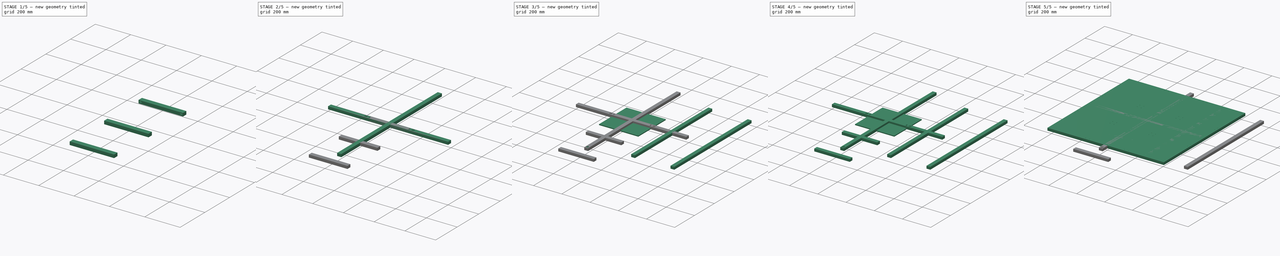
[diagram: build sequence overview — one tinted view per stage of 5, left to right]
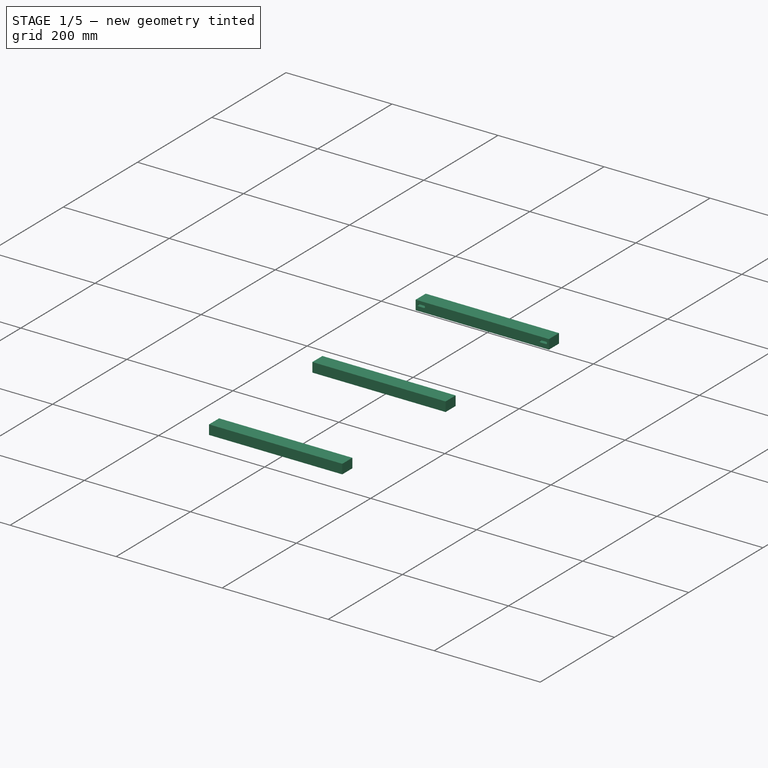
[diagram: stage 1 of 5 — iso view after this stage's code; geometry added in this stage tinted green]
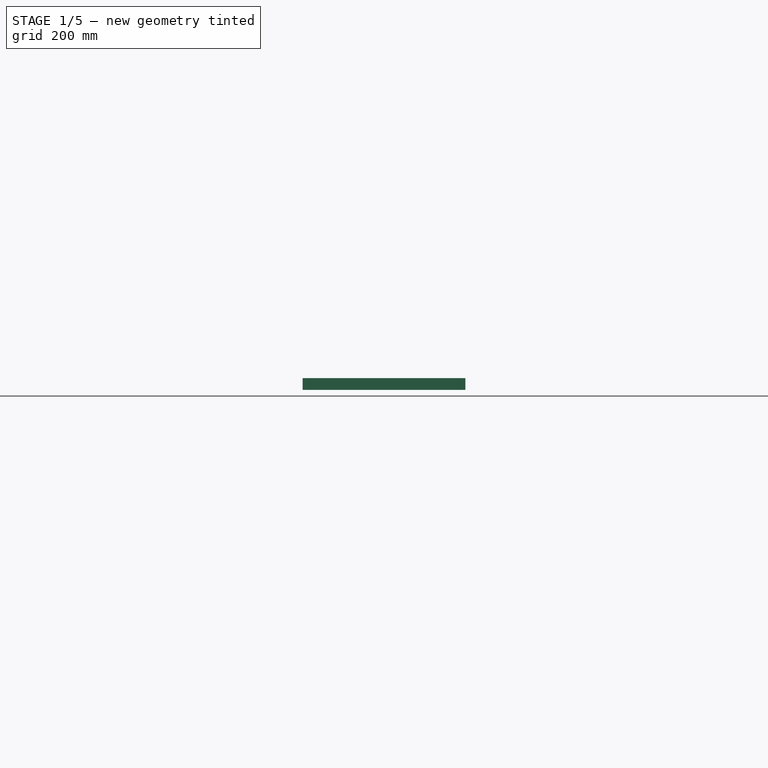
[diagram: stage 1 of 5 — front view after this stage's code; geometry added in this stage tinted green]
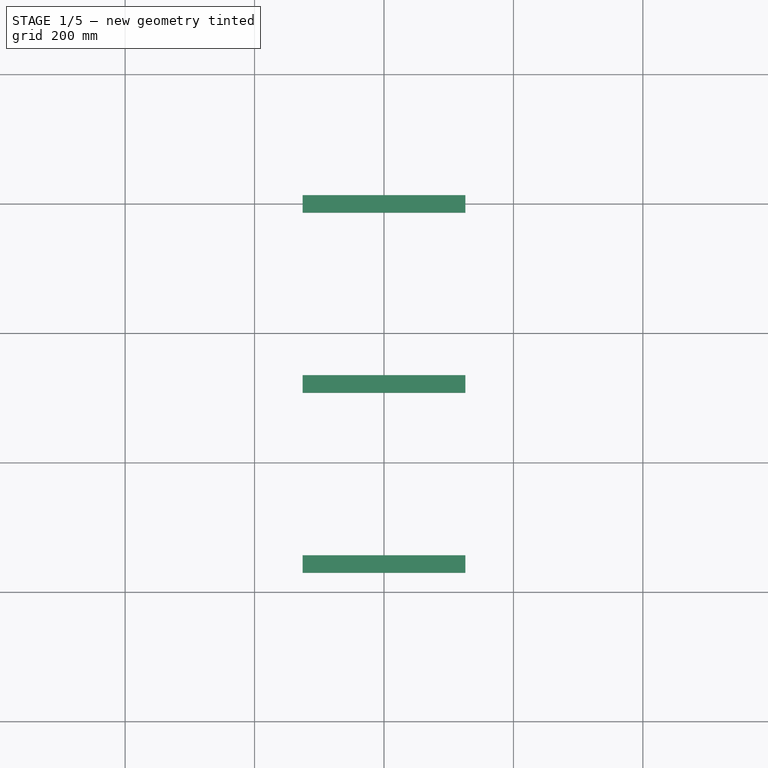
[diagram: stage 1 of 5 — top view after this stage's code; geometry added in this stage tinted green]
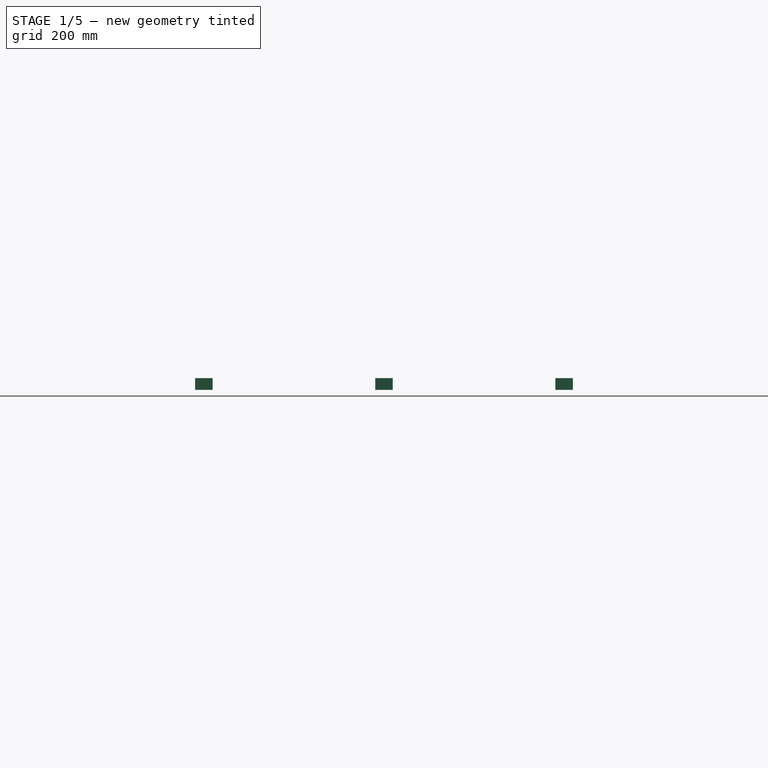
[diagram: stage 1 of 5 — right view after this stage's code; geometry added in this stage tinted green]
FCSTD DOCUMENT  (FreeCAD 1.1R20260414 (Git shallow))
Label: DancePad
License: All rights reserved
LicenseURL: http://en.wikipedia.org/wiki/All_rights_reserved
objects: Sketcher::SketchObject×27, App::Point×22, PartDesign::Pad×15, PartDesign::Body×15, PartDesign::Pocket×12, PartDesign::SubShapeBinder×9, App::Link×8, App::Part×7, PartDesign::LinearPattern×3, Spreadsheet::Sheet×1, PartDesign::Fillet×1
note: 168 computed .brp shape members not serialized (recipe doc carries the construction recipe); baked Part::Feature solids carry a one-line shape summary decoded from their .brp

FEATURE [PartDesign::Body] Body021  label="HorizontalSupport_Bottom_Body"
  AllowCompound = true
  Group = -> [Sketch030,Pad021,Sketch038,Pocket018]
  Origin = -> Origin036
  Placement = pos=(0,-404,0) rot=(0,0,1;0rad)
  Tip = -> Pocket018
  expr: .Placement.Base.y = -(<<Variables>>.OveralPadLength - <<Variables>>.SupportHeight) / 2
FEATURE [Sketcher::SketchObject] Sketch039
  ArcFitTolerance = 0
  AttachmentSupport = -> [XY_Plane026]
  ExternalTypes = [0]
  FullyConstrained = true
  MakeInternals = false
  MapMode = 5
  _ExternalGeoVersion = 0
  expr: Constraints[8] = <<Variables>>.OveralPadLength / 3 - <<Variables>>.SupportHeight
  expr: Constraints[9] = <<Variables>>.SupportHeight
  sketch-geometry (4):
    g0: LineSegment StartX=-125.667 StartY=13.5 StartZ=0 EndX=125.667 EndY=13.5 EndZ=0
    g1: LineSegment StartX=125.667 StartY=13.5 StartZ=0 EndX=125.667 EndY=-13.5 EndZ=0
    g2: LineSegment StartX=125.667 StartY=-13.5 StartZ=0 EndX=-125.667 EndY=-13.5 EndZ=0
    g3: LineSegment StartX=-125.667 StartY=-13.5 StartZ=0 EndX=-125.667 EndY=13.5 EndZ=0
  constraints (11):
    c: Coincident(g0,g1)
    c: Coincident(g1,g2)
    c: Coincident(g2,g3)
    c: Coincident(g3,g0)
    c: Horizontal(g0)
    c: Horizontal(g2)
    c: Vertical(g1)
    c: Vertical(g3)
    c: DistanceX(g0,g0) = 251.333
    c: DistanceY(g1,g1) = 27
    c: Symmetric(g0,g1,g-1)
FEATURE [PartDesign::Pad] Pad025
  AlongSketchNormal = false
  Direction = (0,0,1)
  Length = 18
  Length2 = 100
  Profile = -> Sketch039
  SideType = 0
  Suppressed = false
  Type = 0
  Type2 = 0
  expr: Length = <<Variables>>.SupportThickness
FEATURE [Sketcher::SketchObject] Sketch040
  ArcFitTolerance = 0
  AttachmentSupport = -> [Pad025]
  ExternalTypes = [0]
  FullyConstrained = true
  MakeInternals = false
  MapMode = 5
  Placement = pos=(0,13.5,0) rot=(0,0.707107,0.707107;3.14159rad)
  _ExternalGeoVersion = 0
  sketch-geometry (8):
    g0: ArcOfCircle CenterX=-120 CenterY=10 CenterZ=0 NormalX=0 NormalY=0 NormalZ=1 AngleXU=0 Radius=2 StartAngle=1.5708 EndAngle=4.71239
    g1: ArcOfCircle CenterX=-110 CenterY=10 CenterZ=0 NormalX=0 NormalY=0 NormalZ=1 AngleXU=0 Radius=2 StartAngle=4.71239 EndAngle=7.85398
    g2: LineSegment StartX=-120 StartY=8 StartZ=0 EndX=-110 EndY=8 EndZ=0
    g3: LineSegment StartX=-110 StartY=12 StartZ=0 EndX=-120 EndY=12 EndZ=0
    g4: ArcOfCircle CenterX=110 CenterY=10 CenterZ=0 NormalX=0 NormalY=0 NormalZ=1 AngleXU=0 Radius=2 StartAngle=1.5708 EndAngle=4.71239
    g5: ArcOfCircle CenterX=120 CenterY=10 CenterZ=0 NormalX=0 NormalY=0 NormalZ=1 AngleXU=0 Radius=2 StartAngle=4.71239 EndAngle=7.85398
    g6: LineSegment StartX=110 StartY=8 StartZ=0 EndX=120 EndY=8 EndZ=0
    g7: LineSegment StartX=120 StartY=12 StartZ=0 EndX=110 EndY=12 EndZ=0
  constraints (19):
    c: Tangent(g0,g2) = -1.5708
    c: Tangent(g2,g1) = -1.5708
    c: Tangent(g1,g3) = -1.5708
    c: Tangent(g3,g0) = -1.5708
    c: Equal(g0,g1)
    c: Tangent(g4,g6) = -1.5708
    c: Tangent(g6,g5) = -1.5708
    c: Tangent(g5,g7) = -1.5708
    c: Tangent(g7,g4) = -1.5708
    c: Equal(g4,g5)
    c: Horizontal(g3)
    c: Horizontal(g7)
    c: DistanceX(g0,g1) = 10
    c: DistanceX(g4,g5) = 10
    c: Diameter(g1) = 4
    c: Diameter(g5) = 4
    c: Symmetric(g1,g4,g-2)
    c: DistanceY(g-1,g1) = 10
    c: DistanceX(g1,g-1) = 110
FEATURE [PartDesign::Pocket] Pocket019
  BaseFeature = -> Pad025
  Direction = (0,-1,2e-16)
  Length = 5
  Length2 = 100
  Profile = -> Sketch040
  SideType = 2
  Suppressed = false
  Type = 1
  Type2 = 0
FEATURE [PartDesign::LinearPattern] LinearPattern007
  BaseFeature = -> Pocket019
  Direction = -> Y_Axis026
  Length = 556.667
  Length2 = 100
  Mode = 0
  Mode2 = 0
  Occurrences = 3
  Occurrences2 = 1
  Offset = 278.333
  Offset2 = 10
  Originals = -> [Pocket019,Pad025]
  Reversed = true
  Reversed2 = false
  SpacingPattern = [0]
  SpacingPattern2 = [0]
  Spacings = [-1,-1]
  Suppressed = false
  TransformMode = 0
  expr: Length = <<Variables>>.OveralPadLength / 3 * 2
FEATURE [PartDesign::Body] Body025  label="HorizontalCrossing_Left_Body"
  AllowCompound = true
  Group = -> [Sketch039,Pad025,Sketch040,Pocket019,LinearPattern007]
  Origin = -> Origin040
  Placement = pos=(-139.333,278.333,0) rot=(0,0,1;0rad)
  Tip = -> LinearPattern007
  expr: .Placement.Base.x = -<<Variables>>.OveralPadLength / 3 + <<Variables>>.PadLength / 2
  expr: .Placement.Base.y = <<Variables>>.OveralPadLength / 3
FEATURE [Sketcher::SketchObject] Sketch041
  ArcFitTolerance = 0
  AttachmentSupport = -> [XY_Plane027]
  ExternalTypes = [0]
  FullyConstrained = true
  MakeInternals = false
  MapMode = 5
  _ExternalGeoVersion = 0
  expr: Constraints[8] = <<Variables>>.OveralPadLength / 3 - <<Variables>>.SupportHeight
  expr: Constraints[9] = <<Variables>>.SupportHeight
  sketch-geometry (4):
    g0: LineSegment StartX=-125.667 StartY=13.5 StartZ=0 EndX=125.667 EndY=13.5 EndZ=0
    g1: LineSegment StartX=125.667 StartY=13.5 StartZ=0 EndX=125.667 EndY=-13.5 EndZ=0
    g2: LineSegment StartX=125.667 StartY=-13.5 StartZ=0 EndX=-125.667 EndY=-13.5 EndZ=0
    g3: LineSegment StartX=-125.667 StartY=-13.5 StartZ=0 EndX=-125.667 EndY=13.5 EndZ=0
  constraints (11):
    c: Coincident(g0,g1)
    c: Coincident(g1,g2)
    c: Coincident(g2,g3)
    c: Coincident(g3,g0)
    c: Horizontal(g0)
    c: Horizontal(g2)
    c: Vertical(g1)
    c: Vertical(g3)
    c: DistanceX(g0,g0) = 251.333
    c: DistanceY(g1,g1) = 27
    c: Symmetric(g0,g1,g-1)
FEATURE [PartDesign::Pad] Pad026
  AlongSketchNormal = false
  Direction = (0,0,1)
  Length = 18
  Length2 = 100
  Profile = -> Sketch041
  SideType = 0
  Suppressed = false
  Type = 0
  Type2 = 0
  expr: Length = <<Variables>>.SupportThickness
FEATURE [Sketcher::SketchObject] Sketch042
  ArcFitTolerance = 0
  AttachmentSupport = -> [Pad026]
  ExternalTypes = [0]
  FullyConstrained = true
  MakeInternals = false
  MapMode = 5
  Placement = pos=(0,13.5,0) rot=(0,0.707107,0.707107;3.14159rad)
  _ExternalGeoVersion = 0
  sketch-geometry (8):
    g0: ArcOfCircle CenterX=-120 CenterY=10 CenterZ=0 NormalX=0 NormalY=0 NormalZ=1 AngleXU=0 Radius=2 StartAngle=1.5708 EndAngle=4.71239
    g1: ArcOfCircle CenterX=-110 CenterY=10 CenterZ=0 NormalX=0 NormalY=0 NormalZ=1 AngleXU=0 Radius=2 StartAngle=4.71239 EndAngle=7.85398
    g2: LineSegment StartX=-120 StartY=8 StartZ=0 EndX=-110 EndY=8 EndZ=0
    g3: LineSegment StartX=-110 StartY=12 StartZ=0 EndX=-120 EndY=12 EndZ=0
    g4: ArcOfCircle CenterX=110 CenterY=10 CenterZ=0 NormalX=0 NormalY=0 NormalZ=1 AngleXU=0 Radius=2 StartAngle=1.5708 EndAngle=4.71239
    g5: ArcOfCircle CenterX=120 CenterY=10 CenterZ=0 NormalX=0 NormalY=0 NormalZ=1 AngleXU=0 Radius=2 StartAngle=4.71239 EndAngle=7.85398
    g6: LineSegment StartX=110 StartY=8 StartZ=0 EndX=120 EndY=8 EndZ=0
    g7: LineSegment StartX=120 StartY=12 StartZ=0 EndX=110 EndY=12 EndZ=0
  constraints (19):
    c: Tangent(g0,g2) = -1.5708
    c: Tangent(g2,g1) = -1.5708
    c: Tangent(g1,g3) = -1.5708
    c: Tangent(g3,g0) = -1.5708
    c: Equal(g0,g1)
    c: Tangent(g4,g6) = -1.5708
    c: Tangent(g6,g5) = -1.5708
    c: Tangent(g5,g7) = -1.5708
    c: Tangent(g7,g4) = -1.5708
    c: Equal(g4,g5)
    c: Horizontal(g3)
    c: Horizontal(g7)
    c: Symmetric(g1,g4,g-2)
    c: Diameter(g1) = 4
    c: Diameter(g5) = 4
    c: DistanceX(g0,g1) = 10
    c: DistanceX(g4,g5) = 10
    c: DistanceY(g-1,g1) = 10
    c: DistanceX(g1,g-1) = 110
FEATURE [PartDesign::Pocket] Pocket020
  BaseFeature = -> Pad026
  Direction = (0,-1,2e-16)
  Length = 5
  Length2 = 100
  Profile = -> Sketch042
  SideType = 2
  Suppressed = false
  Type = 1
  Type2 = 0
FEATURE [PartDesign::LinearPattern] LinearPattern008
  BaseFeature = -> Pocket020
  Direction = -> Y_Axis027
  Length = 556.667
  Length2 = 100
  Mode = 0
  Mode2 = 0
  Occurrences = 3
  Occurrences2 = 1
  Offset = 278.333
  Offset2 = 10
  Originals = -> [Pocket020,Pad026]
  Reversed = true
  Reversed2 = false
  SpacingPattern = [0]
  SpacingPattern2 = [0]
  Spacings = [-1,-1]
  Suppressed = false
  TransformMode = 0
  expr: Length = <<Variables>>.OveralPadLength / 3 * 2
FEATURE [PartDesign::Body] Body026  label="HorizontalCrossing_Right_Body"
  AllowCompound = true
  Group = -> [Sketch041,Pad026,Sketch042,Pocket020,LinearPattern008]
  Origin = -> Origin041
  Placement = pos=(139.333,278.333,0) rot=(0,0,1;0rad)
  Tip = -> LinearPattern008
  expr: .Placement.Base.x = <<Variables>>.OveralPadLength / 3 - <<Variables>>.PadLength / 2
  expr: .Placement.Base.y = <<Variables>>.OveralPadLength / 3
FEATURE [App::Part] Part010  label="Supports_Part"
  Group = -> [Body020,Body024,Body025,Body026,Body022,Body021,Body023]
  Origin = -> Origin034
  Placement = pos=(0,0,-18) rot=(0,0,1;0rad)
  expr: .Placement.Base.z = -<<Variables>>.OverallPadThickness
FEATURE [App::Point] Origin042  label="Origine"
  Role = Origin
FEATURE [App::Point] Origin043  label="Origine"
  Role = Origin
FEATURE [App::Point] Origin044  label="Origine"
  Role = Origin
FEATURE [App::Point] Origin045  label="Origine"
  Role = Origin
FEATURE [App::Point] Origin046  label="Origine"
  Role = Origin
FEATURE [App::Point] Origin047  label="Origine"
  Role = Origin
FEATURE [App::Point] Origin048  label="Origine"
  Role = Origin
FEATURE [App::Point] Origin049  label="Origine"
  Role = Origin
FEATURE [App::Point] Origin050  label="Origine"
  Role = Origin
FEATURE [App::Point] Origin051  label="Origine"
  Role = Origin
FEATURE [App::Point] Origin052  label="Origine"
  Role = Origin
FEATURE [App::Point] Origin053  label="Origine"
  Role = Origin
FEATURE [App::Point] Origin054  label="Origine"
  Role = Origin
FEATURE [App::Point] Origin055  label="Origine"
  Role = Origin
FEATURE [App::Point] Origin056  label="Origine"
  Role = Origin
FEATURE [App::Point] Origin057  label="Origine"
  Role = Origin
FEATURE [App::Point] Origin058  label="Origine"
  Role = Origin
FEATURE [App::Point] Origin059  label="Origine"
  Role = Origin
FEATURE [App::Point] Origin060  label="Origine"
  Role = Origin
FEATURE [App::Point] Origin061  label="Origine"
  Role = Origin
FEATURE [App::Point] Origin062  label="Origine"
  Role = Origin
FEATURE [App::Point] Origin063  label="Origine"
  Role = Origin
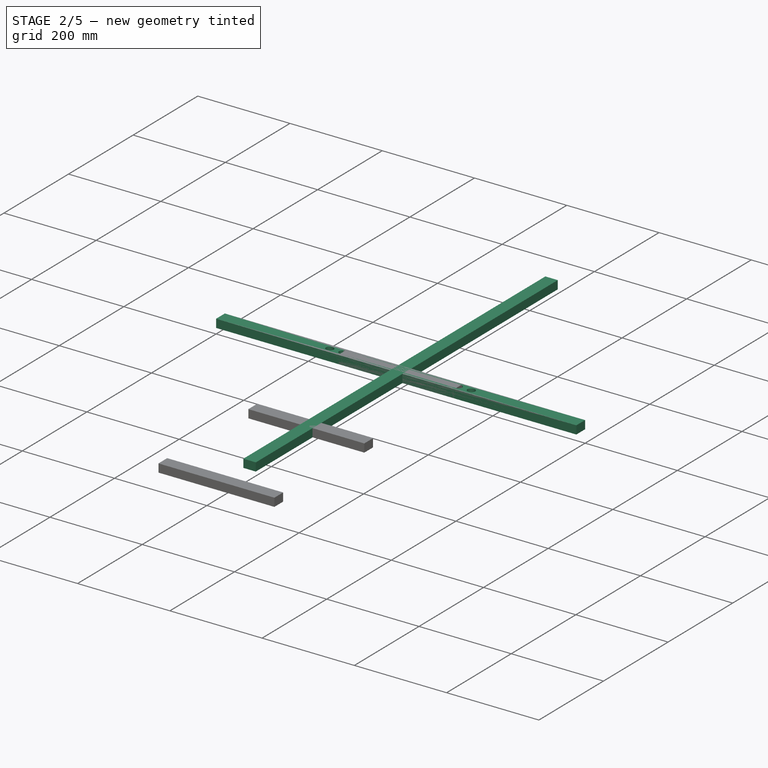
[diagram: stage 2 of 5 — iso view after this stage's code; geometry added in this stage tinted green]
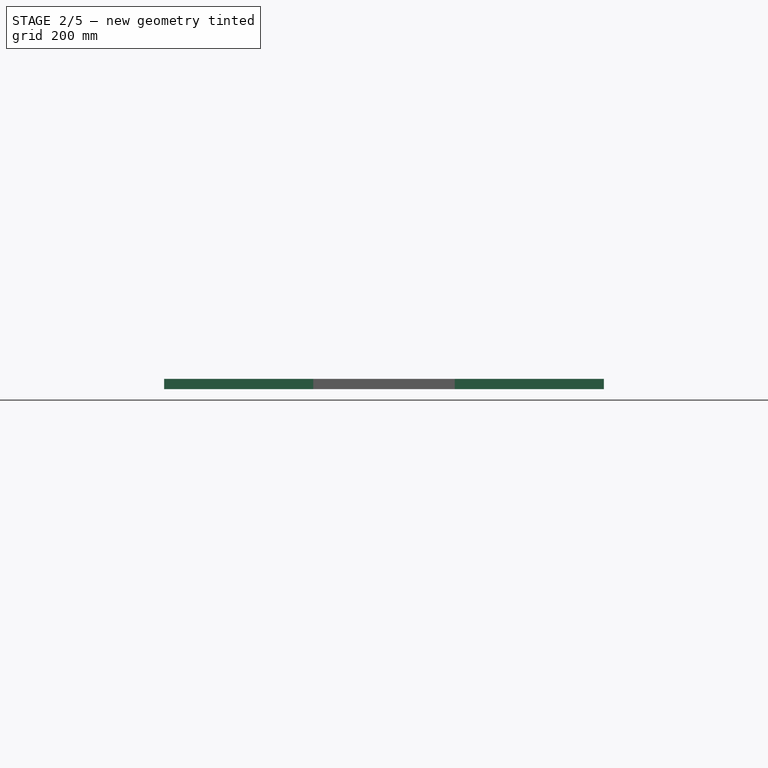
[diagram: stage 2 of 5 — front view after this stage's code; geometry added in this stage tinted green]
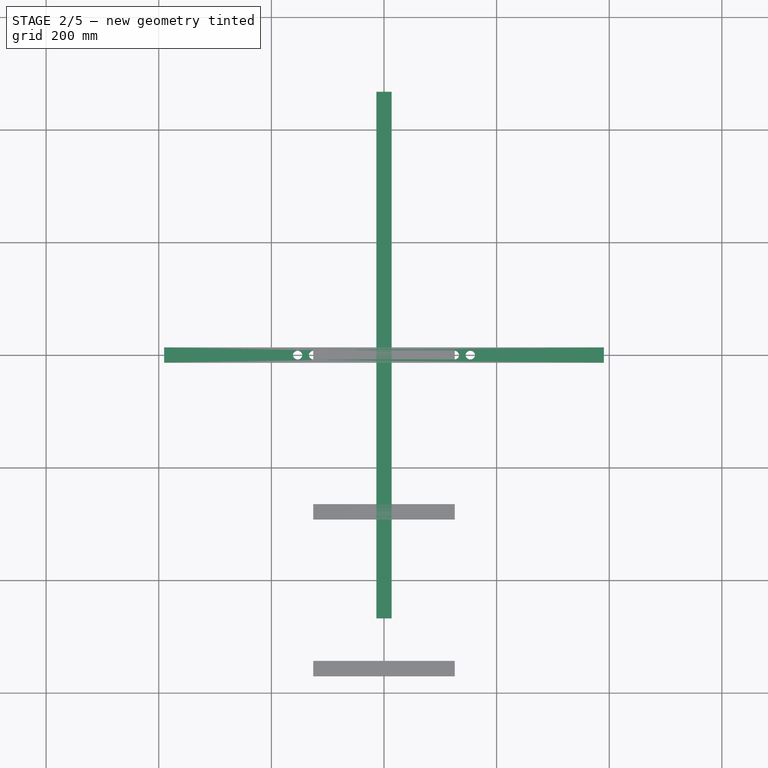
[diagram: stage 2 of 5 — top view after this stage's code; geometry added in this stage tinted green]
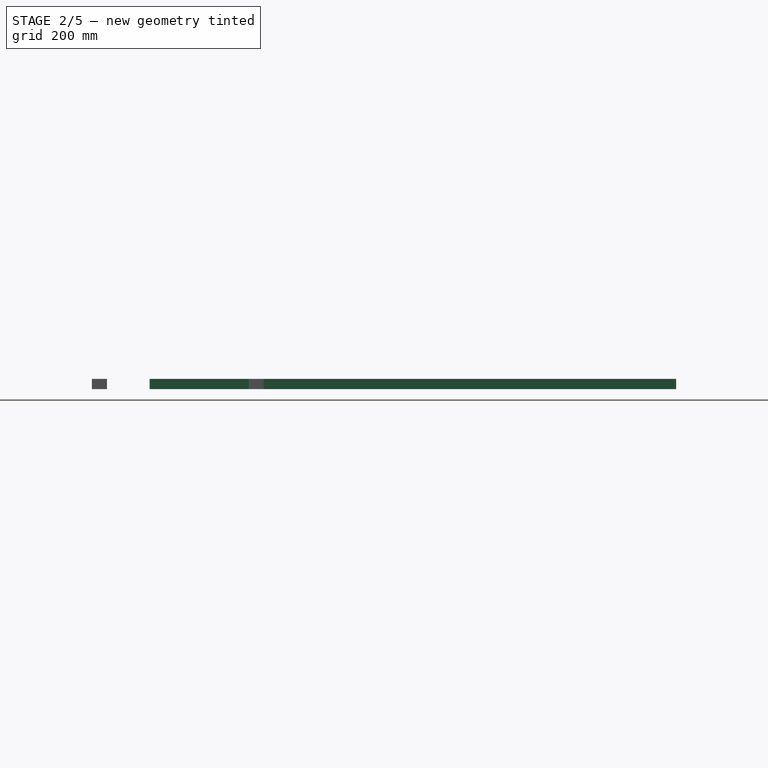
[diagram: stage 2 of 5 — right view after this stage's code; geometry added in this stage tinted green]
FEATURE [Sketcher::SketchObject] Sketch030
  ArcFitTolerance = 0
  AttachmentSupport = -> [XY_Plane022]
  ExternalTypes = [0]
  FullyConstrained = true
  MakeInternals = false
  MapMode = 5
  _ExternalGeoVersion = 0
  expr: Constraints[10] = <<Variables>>.SupportHeight
  expr: Constraints[9] = <<Variables>>.OveralPadLength - 2 * <<Variables>>.SupportHeight
  sketch-geometry (4):
    g0: LineSegment StartX=-390.5 StartY=13.5 StartZ=0 EndX=390.5 EndY=13.5 EndZ=0
    g1: LineSegment StartX=390.5 StartY=13.5 StartZ=0 EndX=390.5 EndY=-13.5 EndZ=0
    g2: LineSegment StartX=390.5 StartY=-13.5 StartZ=0 EndX=-390.5 EndY=-13.5 EndZ=0
    g3: LineSegment StartX=-390.5 StartY=-13.5 StartZ=0 EndX=-390.5 EndY=13.5 EndZ=0
  constraints (11):
    c: Coincident(g0,g1)
    c: Coincident(g1,g2)
    c: Coincident(g2,g3)
    c: Coincident(g3,g0)
    c: Horizontal(g0)
    c: Horizontal(g2)
    c: Vertical(g1)
    c: Vertical(g3)
    c: Symmetric(g0,g1,g-1)
    c: DistanceX(g0,g0) = 781
    c: DistanceY(g1,g1) = 27
FEATURE [PartDesign::Pad] Pad021
  AlongSketchNormal = false
  Direction = (0,0,1)
  Length = 18
  Length2 = 100
  Profile = -> Sketch030
  SideType = 0
  Suppressed = false
  Type = 0
  Type2 = 0
  expr: Length = <<Variables>>.SupportThickness
FEATURE [Sketcher::SketchObject] Sketch031
  ArcFitTolerance = 0
  AttachmentSupport = -> [XY_Plane023]
  ExternalTypes = [0]
  FullyConstrained = true
  MakeInternals = false
  MapMode = 5
  _ExternalGeoVersion = 0
  expr: Constraints[10] = <<Variables>>.SupportHeight
  expr: Constraints[9] = <<Variables>>.OveralPadLength - 2 * <<Variables>>.SupportHeight
  sketch-geometry (4):
    g0: LineSegment StartX=-390.5 StartY=13.5 StartZ=0 EndX=390.5 EndY=13.5 EndZ=0
    g1: LineSegment StartX=390.5 StartY=13.5 StartZ=0 EndX=390.5 EndY=-13.5 EndZ=0
    g2: LineSegment StartX=390.5 StartY=-13.5 StartZ=0 EndX=-390.5 EndY=-13.5 EndZ=0
    g3: LineSegment StartX=-390.5 StartY=-13.5 StartZ=0 EndX=-390.5 EndY=13.5 EndZ=0
  constraints (11):
    c: Coincident(g0,g1)
    c: Coincident(g1,g2)
    c: Coincident(g2,g3)
    c: Coincident(g3,g0)
    c: Horizontal(g0)
    c: Horizontal(g2)
    c: Vertical(g1)
    c: Vertical(g3)
    c: Symmetric(g0,g1,g-1)
    c: DistanceX(g0,g0) = 781
    c: DistanceY(g1,g1) = 27
FEATURE [PartDesign::Pad] Pad022
  AlongSketchNormal = false
  Direction = (0,0,1)
  Length = 18
  Length2 = 100
  Profile = -> Sketch031
  SideType = 0
  Suppressed = false
  Type = 0
  Type2 = 0
  expr: Length = <<Variables>>.SupportThickness
FEATURE [PartDesign::Body] Body023  label="VerticalCrossing_Body"
  AllowCompound = true
  Group = -> [Sketch032,Pad023,LinearPattern006]
  Origin = -> Origin038
  Placement = pos=(-278.333,0,0) rot=(0,0,1;0rad)
  Tip = -> LinearPattern006
  expr: .Placement.Base.x = -(<<Variables>>.OveralPadLength / 3)
FEATURE [Sketcher::SketchObject] Sketch033
  ArcFitTolerance = 0
  AttachmentSupport = -> [Pad022]
  ExternalTypes = [0]
  FullyConstrained = true
  MakeInternals = false
  MapMode = 5
  Placement = pos=(0,13.5,0) rot=(0,0.707107,0.707107;3.14159rad)
  _ExternalGeoVersion = 0
  sketch-geometry (16):
    g0: ArcOfCircle CenterX=-259.333 CenterY=10 CenterZ=0 NormalX=0 NormalY=0 NormalZ=1 AngleXU=0 Radius=2 StartAngle=1.5708 EndAngle=4.71239
    g1: ArcOfCircle CenterX=-249.333 CenterY=10 CenterZ=0 NormalX=0 NormalY=0 NormalZ=1 AngleXU=0 Radius=2 StartAngle=4.71239 EndAngle=7.85398
    g2: LineSegment StartX=-259.333 StartY=8 StartZ=0 EndX=-249.333 EndY=8 EndZ=0
    g3: LineSegment StartX=-249.333 StartY=12 StartZ=0 EndX=-259.333 EndY=12 EndZ=0
    g4: ArcOfCircle CenterX=-29.3333 CenterY=10 CenterZ=0 NormalX=0 NormalY=0 NormalZ=1 AngleXU=0 Radius=2 StartAngle=1.5708 EndAngle=4.71239
    g5: ArcOfCircle CenterX=-19.3333 CenterY=10 CenterZ=0 NormalX=0 NormalY=0 NormalZ=1 AngleXU=0 Radius=2 StartAngle=4.71239 EndAngle=7.85398
    g6: LineSegment StartX=-29.3333 StartY=8 StartZ=0 EndX=-19.3333 EndY=8 EndZ=0
    g7: LineSegment StartX=-19.3333 StartY=12 StartZ=0 EndX=-29.3333 EndY=12 EndZ=0
    g8: ArcOfCircle CenterX=19.3333 CenterY=10 CenterZ=0 NormalX=0 NormalY=0 NormalZ=1 AngleXU=0 Radius=2 StartAngle=1.5708 EndAngle=4.71239
    g9: ArcOfCircle CenterX=29.3333 CenterY=10 CenterZ=0 NormalX=0 NormalY=0 NormalZ=1 AngleXU=0 Radius=2 StartAngle=4.71239 EndAngle=7.85398
    g10: LineSegment StartX=19.3333 StartY=8 StartZ=0 EndX=29.3333 EndY=8 EndZ=0
    g11: LineSegment StartX=29.3333 StartY=12 StartZ=0 EndX=19.3333 EndY=12 EndZ=0
    g12: ArcOfCircle CenterX=249.333 CenterY=10 CenterZ=0 NormalX=0 NormalY=0 NormalZ=1 AngleXU=0 Radius=2 StartAngle=1.5708 EndAngle=4.71239
    g13: ArcOfCircle CenterX=259.333 CenterY=10 CenterZ=0 NormalX=0 NormalY=0 NormalZ=1 AngleXU=0 Radius=2 StartAngle=4.71239 EndAngle=7.85398
    g14: LineSegment StartX=249.333 StartY=8 StartZ=0 EndX=259.333 EndY=8 EndZ=0
    g15: LineSegment StartX=259.333 StartY=12 StartZ=0 EndX=249.333 EndY=12 EndZ=0
  constraints (28):
    c: Tangent(g0,g2) = -1.5708
    c: Tangent(g2,g1) = -1.5708
    c: Tangent(g1,g3) = -1.5708
    c: Tangent(g3,g0) = -1.5708
    c: Coincident(g0,g-3)
    c: Coincident(g1,g-4)
    c: Tangent(g4,g6) = -1.5708
    c: Tangent(g6,g5) = -1.5708
    c: Tangent(g5,g7) = -1.5708
    c: Tangent(g7,g4) = -1.5708
    c: Coincident(g4,g-5)
    c: Coincident(g5,g-6)
    c: Tangent(g8,g10) = -1.5708
    c: Tangent(g10,g9) = -1.5708
    c: Tangent(g9,g11) = -1.5708
    c: Tangent(g11,g8) = -1.5708
    c: Coincident(g8,g-7)
    c: Coincident(g9,g-8)
    c: Tangent(g12,g14) = -1.5708
    c: Tangent(g14,g13) = -1.5708
    c: Tangent(g13,g15) = -1.5708
    c: Tangent(g15,g12) = -1.5708
    c: Coincident(g12,g-9)
    c: Coincident(g13,g-10)
    c: Coincident(g0,g-3)
    c: Coincident(g4,g-5)
    c: Coincident(g8,g-7)
    c: Coincident(g-9,g12)
FEATURE [PartDesign::Pocket] Pocket014
  BaseFeature = -> Pad022
  Direction = (0,-1,2e-16)
  Length = 5
  Length2 = 100
  Profile = -> Sketch033
  SideType = 2
  Suppressed = false
  Type = 1
  Type2 = 0
FEATURE [PartDesign::Body] Body020  label="VerticalSupport_Right_Body"
  AllowCompound = true
  Group = -> [Sketch029,Pad020,Sketch034,Pocket015]
  Origin = -> Origin035
  Placement = pos=(-404,50,0) rot=(0,0,1;0rad)
  Tip = -> Pocket015
  expr: .Placement.Base.x = -(<<Variables>>.OveralPadLength - <<Variables>>.SupportHeight) / 2
  expr: .Placement.Base.y = <<Variables>>.CommandWidth / 2
FEATURE [Sketcher::SketchObject] Sketch035
  ArcFitTolerance = 0
  AttachmentSupport = -> [XY_Plane025]
  ExternalTypes = [0]
  FullyConstrained = true
  MakeInternals = false
  MapMode = 5
  _ExternalGeoVersion = 0
  expr: Constraints[8] = <<Variables>>.OveralPadLength + <<Variables>>.CommandWidth
  expr: Constraints[9] = <<Variables>>.SupportHeight
  sketch-geometry (4):
    g0: LineSegment StartX=-13.5 StartY=467.5 StartZ=0 EndX=13.5 EndY=467.5 EndZ=0
    g1: LineSegment StartX=13.5 StartY=467.5 StartZ=0 EndX=13.5 EndY=-467.5 EndZ=0
    g2: LineSegment StartX=13.5 StartY=-467.5 StartZ=0 EndX=-13.5 EndY=-467.5 EndZ=0
    g3: LineSegment StartX=-13.5 StartY=-467.5 StartZ=0 EndX=-13.5 EndY=467.5 EndZ=0
  constraints (11):
    c: Coincident(g0,g1)
    c: Coincident(g1,g2)
    c: Coincident(g2,g3)
    c: Coincident(g3,g0)
    c: Horizontal(g0)
    c: Horizontal(g2)
    c: Vertical(g1)
    c: Vertical(g3)
    c: DistanceY(g3,g3) = 935
    c: DistanceX(g0,g0) = 27
    c: Symmetric(g0,g2,g-1)
FEATURE [PartDesign::Pad] Pad024
  AlongSketchNormal = false
  Direction = (0,0,1)
  Length = 18
  Length2 = 100
  Profile = -> Sketch035
  SideType = 0
  Suppressed = false
  Type = 0
  Type2 = 0
  expr: Length = <<Variables>>.SupportThickness
FEATURE [PartDesign::Body] Body024  label="VerticalSupport_Left_Body"
  AllowCompound = true
  Group = -> [Sketch035,Pad024,Sketch036,Pocket016]
  Origin = -> Origin039
  Placement = pos=(404,50,0) rot=(0,0,1;0rad)
  Tip = -> Pocket016
  expr: .Placement.Base.x = (<<Variables>>.OveralPadLength - <<Variables>>.SupportHeight) / 2
  expr: .Placement.Base.y = <<Variables>>.CommandWidth / 2
FEATURE [Sketcher::SketchObject] Sketch037
  ArcFitTolerance = 0
  AttachmentSupport = -> [Pocket014]
  ExternalTypes = [0]
  FullyConstrained = true
  MakeInternals = false
  MapMode = 5
  Placement = pos=(0,0,18) rot=(0,0,1;0rad)
  _ExternalGeoVersion = 0
  expr: Constraints[4] = <<Variables>>.SupportWasherClearanceDiammeter
  expr: Constraints[5] = <<Variables>>.SupportWasherClearanceDiammeter
  expr: Constraints[6] = <<Variables>>.SupportWasherClearanceDiammeter
  expr: Constraints[7] = <<Variables>>.SupportWasherClearanceDiammeter
  sketch-geometry (4):
    g0: Circle CenterX=-153.333 CenterY=-0.666667 CenterZ=0 NormalX=0 NormalY=0 NormalZ=1 AngleXU=0 Radius=8.5
    g1: Circle CenterX=-125 CenterY=-0.666667 CenterZ=0 NormalX=0 NormalY=0 NormalZ=1 AngleXU=0 Radius=8.5
    g2: Circle CenterX=125 CenterY=-0.666667 CenterZ=0 NormalX=0 NormalY=0 NormalZ=1 AngleXU=0 Radius=8.5
    g3: Circle CenterX=153.333 CenterY=-0.666667 CenterZ=0 NormalX=0 NormalY=0 NormalZ=1 AngleXU=0 Radius=8.5
  constraints (8):
    c: Coincident(g0,g-3)
    c: Coincident(g1,g-4)
    c: Coincident(g2,g-5)
    c: Coincident(g3,g-6)
    c: Diameter(g0) = 17
    c: Diameter(g1) = 17
    c: Diameter(g2) = 17
    c: Diameter(g3) = 17
FEATURE [PartDesign::Pocket] Pocket017
  BaseFeature = -> Pocket014
  Direction = (0,0,-1)
  Length = 5
  Length2 = 100
  Profile = -> Sketch037
  SideType = 2
  Suppressed = false
  Type = 1
  Type2 = 0
FEATURE [PartDesign::Body] Body022  label="HorizontalSupport_Up_Body"
  AllowCompound = true
  Group = -> [Sketch031,Pad022,Sketch033,Pocket014,Sketch037,Pocket017]
  Origin = -> Origin037
  Placement = pos=(0,404,0) rot=(0,0,1;0rad)
  Tip = -> Pocket017
  expr: .Placement.Base.y = (<<Variables>>.OveralPadLength - <<Variables>>.SupportHeight) / 2
FEATURE [Sketcher::SketchObject] Sketch038
  ArcFitTolerance = 0
  AttachmentSupport = -> [Pad021]
  ExternalTypes = [0]
  FullyConstrained = true
  MakeInternals = false
  MapMode = 5
  Placement = pos=(0,0,18) rot=(0,0,1;0rad)
  _ExternalGeoVersion = 0
  expr: Constraints[4] = <<Variables>>.SupportWasherClearanceDiammeter
  expr: Constraints[5] = <<Variables>>.SupportWasherClearanceDiammeter
  expr: Constraints[6] = <<Variables>>.SupportWasherClearanceDiammeter
  expr: Constraints[7] = <<Variables>>.SupportWasherClearanceDiammeter
  sketch-geometry (4):
    g0: Circle CenterX=-153.333 CenterY=0.666667 CenterZ=0 NormalX=0 NormalY=0 NormalZ=1 AngleXU=0 Radius=8.5
    g1: Circle CenterX=-125 CenterY=0.666667 CenterZ=0 NormalX=0 NormalY=0 NormalZ=1 AngleXU=0 Radius=8.5
    g2: Circle CenterX=125 CenterY=0.666667 CenterZ=0 NormalX=0 NormalY=0 NormalZ=1 AngleXU=0 Radius=8.5
    g3: Circle CenterX=153.333 CenterY=0.666667 CenterZ=0 NormalX=0 NormalY=0 NormalZ=1 AngleXU=0 Radius=8.5
  constraints (8):
    c: Coincident(g0,g-3)
    c: Coincident(g1,g-4)
    c: Coincident(g2,g-6)
    c: Coincident(g3,g-5)
    c: Diameter(g0) = 17
    c: Diameter(g1) = 17
    c: Diameter(g2) = 17
    c: Diameter(g3) = 17
FEATURE [PartDesign::Pocket] Pocket018
  BaseFeature = -> Pad021
  Direction = (0,0,-1)
  Length = 5
  Length2 = 100
  Profile = -> Sketch038
  SideType = 2
  Suppressed = false
  Type = 1
  Type2 = 0
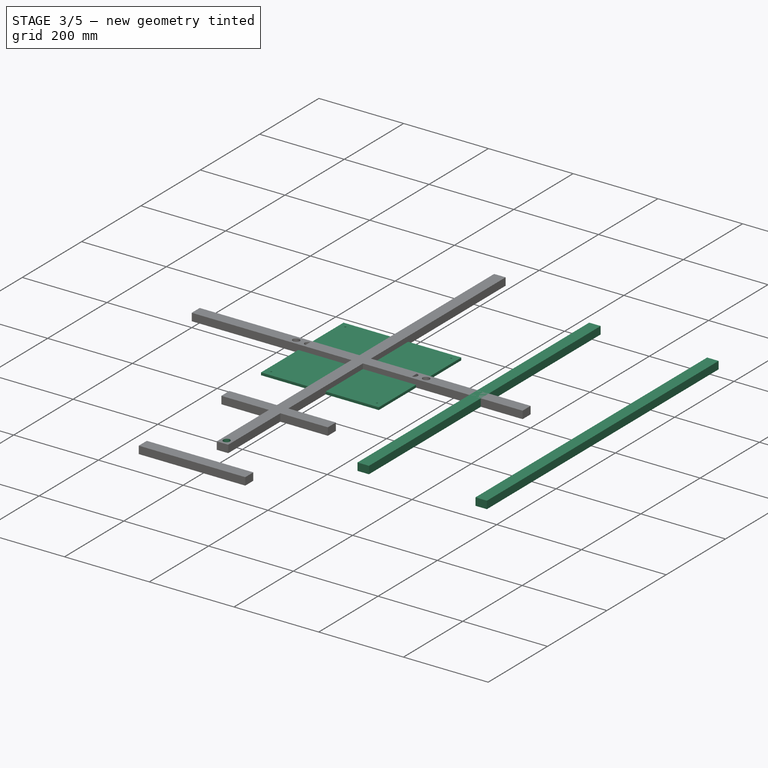
[diagram: stage 3 of 5 — iso view after this stage's code; geometry added in this stage tinted green]
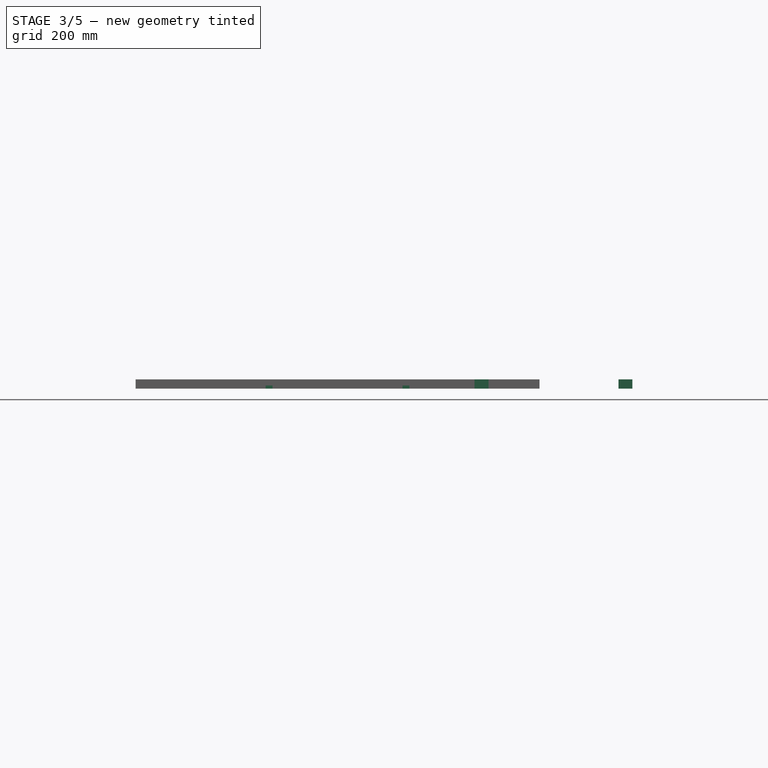
[diagram: stage 3 of 5 — front view after this stage's code; geometry added in this stage tinted green]
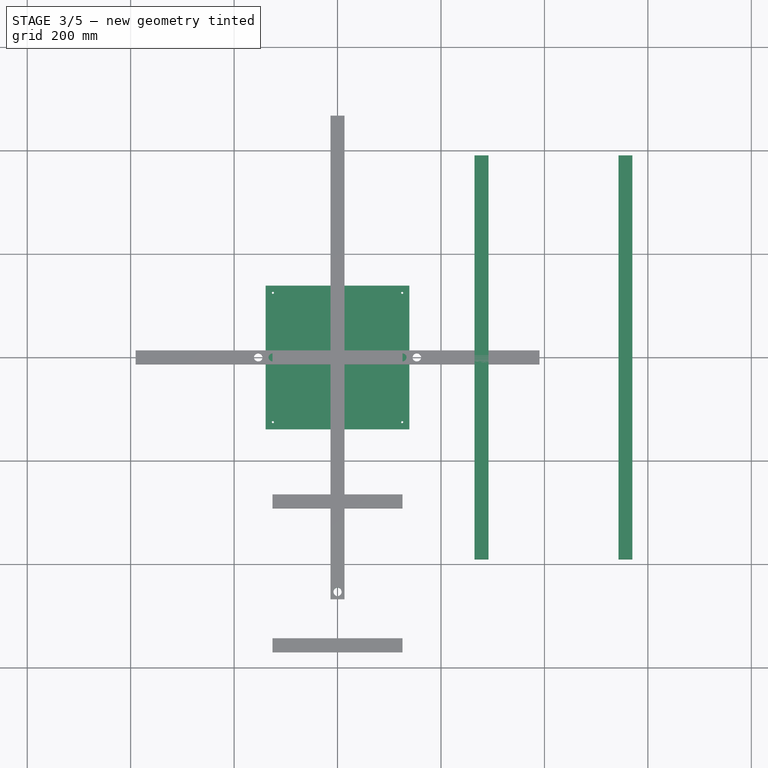
[diagram: stage 3 of 5 — top view after this stage's code; geometry added in this stage tinted green]
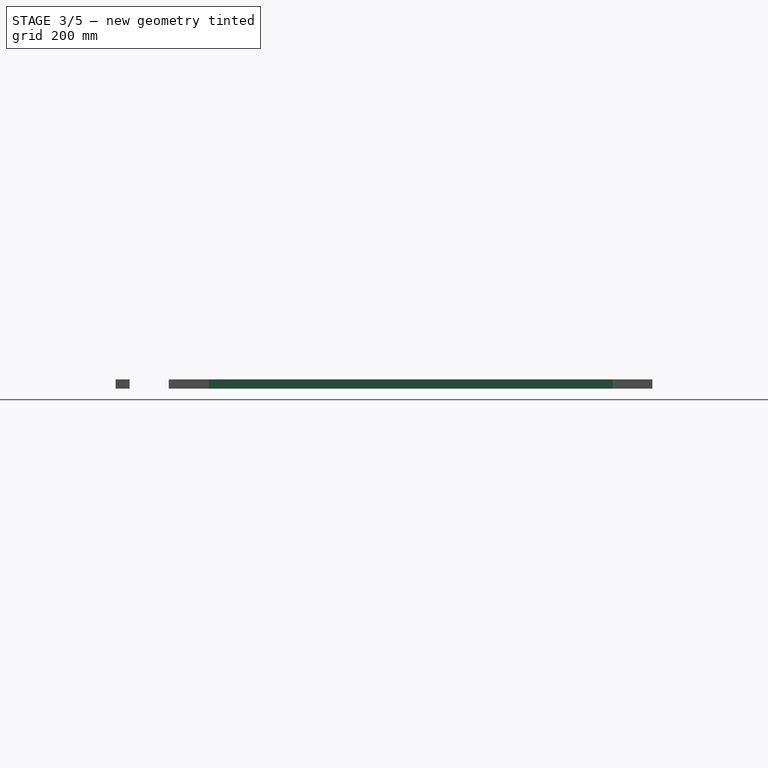
[diagram: stage 3 of 5 — right view after this stage's code; geometry added in this stage tinted green]
FEATURE [PartDesign::Body] Body002  label="Border_Body"
  AllowCompound = true
  Group = -> [Sketch002,Pad002,Sketch003,Sketch004,Pocket,Pocket001,Fillet]
  Origin = -> Origin008
  Tip = -> Fillet
FEATURE [Sketcher::SketchObject] Sketch020
  ArcFitTolerance = 0
  AttachmentSupport = -> [XY_Plane015]
  ExternalTypes = [0]
  FullyConstrained = true
  MakeInternals = false
  MapMode = 5
  _ExternalGeoVersion = 0
  expr: Constraints[8] = <<Variables>>.PadLength
  expr: Constraints[9] = <<Variables>>.PadLength
  sketch-geometry (4):
    g0: LineSegment StartX=-139 StartY=139 StartZ=0 EndX=139 EndY=139 EndZ=0
    g1: LineSegment StartX=139 StartY=139 StartZ=0 EndX=139 EndY=-139 EndZ=0
    g2: LineSegment StartX=139 StartY=-139 StartZ=0 EndX=-139 EndY=-139 EndZ=0
    g3: LineSegment StartX=-139 StartY=-139 StartZ=0 EndX=-139 EndY=139 EndZ=0
  constraints (11):
    c: Coincident(g0,g1)
    c: Coincident(g1,g2)
    c: Coincident(g2,g3)
    c: Coincident(g3,g0)
    c: Horizontal(g0)
    c: Horizontal(g2)
    c: Vertical(g1)
    c: Vertical(g3)
    c: DistanceX(g0,g0) = 278
    c: DistanceY(g1,g1) = 278
    c: Symmetric(g0,g1,g-1)
FEATURE [PartDesign::Pad] Pad014
  AlongSketchNormal = false
  Direction = (0,0,1)
  Length = 6
  Length2 = 100
  Profile = -> Sketch020
  SideType = 0
  Suppressed = false
  Type = 0
  Type2 = 0
  expr: Length = <<Variables>>.PadThickness
FEATURE [Sketcher::SketchObject] Sketch021
  ArcFitTolerance = 0
  AttachmentSupport = -> [Pad014]
  ExternalTypes = [0]
  FullyConstrained = true
  MakeInternals = false
  MapMode = 5
  Placement = pos=(0,0,6) rot=(0,0,1;0rad)
  _ExternalGeoVersion = 0
  expr: Constraints[0] = <<Variables>>.PadScrewDiameter
  expr: Constraints[1] = <<Variables>>.PadScrewDiameter
  expr: Constraints[2] = <<Variables>>.PadScrewDiameter
  expr: Constraints[3] = <<Variables>>.PadScrewDiameter
  expr: Constraints[4] = <<Variables>>.PadLength / 2 - <<Variables>>.ScrewCornerPosition
  expr: Constraints[5] = <<Variables>>.PadLength / 2 - <<Variables>>.ScrewCornerPosition
  sketch-geometry (4):
    g0: Circle CenterX=-125 CenterY=125 CenterZ=0 NormalX=0 NormalY=0 NormalZ=1 AngleXU=0 Radius=2
    g1: Circle CenterX=125 CenterY=125 CenterZ=0 NormalX=0 NormalY=0 NormalZ=1 AngleXU=0 Radius=2
    g2: Circle CenterX=-125 CenterY=-125 CenterZ=0 NormalX=0 NormalY=0 NormalZ=1 AngleXU=0 Radius=2
    g3: Circle CenterX=125 CenterY=-125 CenterZ=0 NormalX=0 NormalY=0 NormalZ=1 AngleXU=0 Radius=2
  constraints (9):
    c: Diameter(g0) = 4
    c: Diameter(g1) = 4
    c: Diameter(g2) = 4
    c: Diameter(g3) = 4
    c: DistanceX(g0,g-1) = 125
    c: DistanceY(g-1,g0) = 125
    c: Symmetric(g0,g1,g-2)
    c: Symmetric(g0,g2,g-1)
    c: Symmetric(g0,g3,g-1)
FEATURE [PartDesign::Pocket] Pocket011  label="ScrewMidde_Pocket"
  BaseFeature = -> Pad014
  Direction = (0,0,-1)
  Length = 5
  Length2 = 100
  Profile = -> Sketch021
  SideType = 2
  Suppressed = false
  Type = 1
  Type2 = 0
FEATURE [PartDesign::Body] Body
  AllowCompound = true
  Group = -> [Sketch,Pad,Binder,Binder001,Binder002,Binder003,Binder004,Binder005,Binder006,Binder007,Binder008,Sketch028,Pocket013]
  Origin = -> Origin
  Tip = -> Pocket013
FEATURE [App::Part] Part001  label="Body_Part"
  Group = -> [Body]
  Origin = -> Origin004
FEATURE [Sketcher::SketchObject] Sketch029
  ArcFitTolerance = 0
  AttachmentSupport = -> [XY_Plane021]
  ExternalTypes = [0]
  FullyConstrained = true
  MakeInternals = false
  MapMode = 5
  _ExternalGeoVersion = 0
  expr: Constraints[8] = <<Variables>>.SupportHeight
  expr: Constraints[9] = <<Variables>>.OveralPadLength + <<Variables>>.CommandWidth
  sketch-geometry (4):
    g0: LineSegment StartX=-13.5 StartY=467.5 StartZ=0 EndX=13.5 EndY=467.5 EndZ=0
    g1: LineSegment StartX=13.5 StartY=467.5 StartZ=0 EndX=13.5 EndY=-467.5 EndZ=0
    g2: LineSegment StartX=13.5 StartY=-467.5 StartZ=0 EndX=-13.5 EndY=-467.5 EndZ=0
    g3: LineSegment StartX=-13.5 StartY=-467.5 StartZ=0 EndX=-13.5 EndY=467.5 EndZ=0
  constraints (11):
    c: Coincident(g0,g1)
    c: Coincident(g1,g2)
    c: Coincident(g2,g3)
    c: Coincident(g3,g0)
    c: Horizontal(g0)
    c: Horizontal(g2)
    c: Vertical(g1)
    c: Vertical(g3)
    c: DistanceX(g0,g0) = 27
    c: DistanceY(g3,g3) = 935
    c: Symmetric(g0,g1,g-1)
FEATURE [PartDesign::Pad] Pad020
  AlongSketchNormal = false
  Direction = (0,0,1)
  Length = 18
  Length2 = 100
  Profile = -> Sketch029
  SideType = 0
  Suppressed = false
  Type = 0
  Type2 = 0
FEATURE [Sketcher::SketchObject] Sketch032
  ArcFitTolerance = 0
  AttachmentSupport = -> [XY_Plane024]
  ExternalTypes = [0]
  FullyConstrained = true
  MakeInternals = false
  MapMode = 5
  _ExternalGeoVersion = 0
  expr: Constraints[8] = <<Variables>>.SupportHeight
  expr: Constraints[9] = <<Variables>>.OveralPadLength - 2 * <<Variables>>.SupportHeight
  sketch-geometry (4):
    g0: LineSegment StartX=-13.5 StartY=390.5 StartZ=0 EndX=13.5 EndY=390.5 EndZ=0
    g1: LineSegment StartX=13.5 StartY=390.5 StartZ=0 EndX=13.5 EndY=-390.5 EndZ=0
    g2: LineSegment StartX=13.5 StartY=-390.5 StartZ=0 EndX=-13.5 EndY=-390.5 EndZ=0
    g3: LineSegment StartX=-13.5 StartY=-390.5 StartZ=0 EndX=-13.5 EndY=390.5 EndZ=0
  constraints (11):
    c: Coincident(g0,g1)
    c: Coincident(g1,g2)
    c: Coincident(g2,g3)
    c: Coincident(g3,g0)
    c: Horizontal(g0)
    c: Horizontal(g2)
    c: Vertical(g1)
    c: Vertical(g3)
    c: DistanceX(g0,g0) = 27
    c: DistanceY(g1,g1) = 781
    c: Symmetric(g0,g1,g-1)
FEATURE [PartDesign::Pad] Pad023
  AlongSketchNormal = false
  Direction = (0,0,1)
  Length = 18
  Length2 = 100
  Profile = -> Sketch032
  SideType = 0
  Suppressed = false
  Type = 0
  Type2 = 0
  expr: Length = <<Variables>>.SupportThickness
FEATURE [PartDesign::LinearPattern] LinearPattern006
  BaseFeature = -> Pad023
  Direction = -> X_Axis024
  Length = 556.667
  Length2 = 100
  Mode = 0
  Mode2 = 0
  Occurrences = 3
  Occurrences2 = 1
  Offset = 278.333
  Offset2 = 10
  Reversed2 = false
  SpacingPattern = [0]
  SpacingPattern2 = [0]
  Spacings = [-1,-1]
  Spacings2 = [0]
  Suppressed = false
  TransformMode = 0
  expr: Length = <<Variables>>.OveralPadLength / 3 * 2
FEATURE [Sketcher::SketchObject] Sketch034
  ArcFitTolerance = 0
  AttachmentSupport = -> [Pad020]
  ExternalTypes = [0]
  FullyConstrained = true
  MakeInternals = false
  MapMode = 5
  Placement = pos=(0,0,18) rot=(0,0,1;0rad)
  _ExternalGeoVersion = 0
  expr: Constraints[10] = <<Variables>>.SupportWasherClearanceDiammeter
  expr: Constraints[11] = <<Variables>>.SupportWasherClearanceDiammeter
  expr: Constraints[6] = <<Variables>>.SupportWasherClearanceDiammeter
  expr: Constraints[7] = <<Variables>>.SupportWasherClearanceDiammeter
  expr: Constraints[8] = <<Variables>>.SupportWasherClearanceDiammeter
  expr: Constraints[9] = <<Variables>>.SupportWasherClearanceDiammeter
  sketch-geometry (6):
    g0: Circle CenterX=0.666667 CenterY=353.333 CenterZ=0 NormalX=0 NormalY=0 NormalZ=1 AngleXU=0 Radius=8.5
    g1: Circle CenterX=0.666667 CenterY=103.333 CenterZ=0 NormalX=0 NormalY=0 NormalZ=1 AngleXU=0 Radius=8.5
    g2: Circle CenterX=0.666667 CenterY=75 CenterZ=0 NormalX=0 NormalY=0 NormalZ=1 AngleXU=0 Radius=8.5
    g3: Circle CenterX=0.666667 CenterY=-175 CenterZ=0 NormalX=0 NormalY=0 NormalZ=1 AngleXU=0 Radius=8.5
    g4: Circle CenterX=0.666667 CenterY=-203.333 CenterZ=0 NormalX=0 NormalY=0 NormalZ=1 AngleXU=0 Radius=8.5
    g5: Circle CenterX=0.666667 CenterY=-453.333 CenterZ=0 NormalX=0 NormalY=0 NormalZ=1 AngleXU=0 Radius=8.5
  constraints (12):
    c: Coincident(g0,g-3)
    c: Coincident(g1,g-4)
    c: Coincident(g2,g-5)
    c: Coincident(g3,g-6)
    c: Coincident(g4,g-7)
    c: Coincident(g5,g-8)
    c: Diameter(g0) = 17
    c: Diameter(g1) = 17
    c: Diameter(g2) = 17
    c: Diameter(g3) = 17
    c: Diameter(g4) = 17
    c: Diameter(g5) = 17
FEATURE [PartDesign::Pocket] Pocket015
  BaseFeature = -> Pad020
  Direction = (0,0,-1)
  Length = 5
  Length2 = 100
  Profile = -> Sketch034
  SideType = 2
  Suppressed = false
  Type = 1
  Type2 = 0
FEATURE [Sketcher::SketchObject] Sketch036
  ArcFitTolerance = 0
  AttachmentSupport = -> [Pad024]
  ExternalTypes = [0]
  FullyConstrained = true
  MakeInternals = false
  MapMode = 5
  Placement = pos=(0,0,18) rot=(0,0,1;0rad)
  _ExternalGeoVersion = 0
  expr: Constraints[10] = <<Variables>>.SupportWasherClearanceDiammeter
  expr: Constraints[11] = <<Variables>>.SupportWasherClearanceDiammeter
  expr: Constraints[6] = <<Variables>>.SupportWasherClearanceDiammeter
  expr: Constraints[7] = <<Variables>>.SupportWasherClearanceDiammeter
  expr: Constraints[8] = <<Variables>>.SupportWasherClearanceDiammeter
  expr: Constraints[9] = <<Variables>>.SupportWasherClearanceDiammeter
  sketch-geometry (6):
    g0: Circle CenterX=-0.666667 CenterY=353.333 CenterZ=0 NormalX=0 NormalY=0 NormalZ=1 AngleXU=0 Radius=8.5
    g1: Circle CenterX=-0.666667 CenterY=103.333 CenterZ=0 NormalX=0 NormalY=0 NormalZ=1 AngleXU=0 Radius=8.5
    g2: Circle CenterX=-0.666667 CenterY=75 CenterZ=0 NormalX=0 NormalY=0 NormalZ=1 AngleXU=0 Radius=8.5
    g3: Circle CenterX=-0.666667 CenterY=-175 CenterZ=0 NormalX=0 NormalY=0 NormalZ=1 AngleXU=0 Radius=8.5
    g4: Circle CenterX=-0.666667 CenterY=-203.333 CenterZ=0 NormalX=0 NormalY=0 NormalZ=1 AngleXU=0 Radius=8.5
    g5: Circle CenterX=-0.666667 CenterY=-453.333 CenterZ=0 NormalX=0 NormalY=0 NormalZ=1 AngleXU=0 Radius=8.5
  constraints (12):
    c: Coincident(g0,g-3)
    c: Coincident(g1,g-4)
    c: Coincident(g2,g-5)
    c: Coincident(g3,g-6)
    c: Coincident(g4,g-7)
    c: Coincident(g5,g-8)
    c: Diameter(g0) = 17
    c: Diameter(g1) = 17
    c: Diameter(g2) = 17
    c: Diameter(g3) = 17
    c: Diameter(g4) = 17
    c: Diameter(g5) = 17
FEATURE [PartDesign::Pocket] Pocket016
  BaseFeature = -> Pad024
  Direction = (0,0,-1)
  Length = 5
  Length2 = 100
  Profile = -> Sketch036
  SideType = 2
  Suppressed = false
  Type = 1
  Type2 = 0
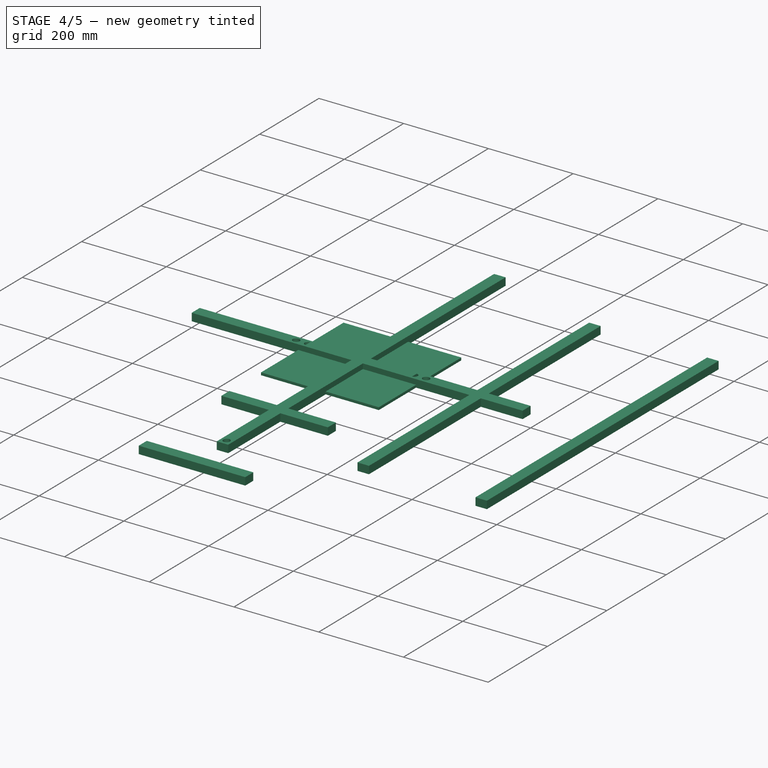
[diagram: stage 4 of 5 — iso view after this stage's code; geometry added in this stage tinted green]
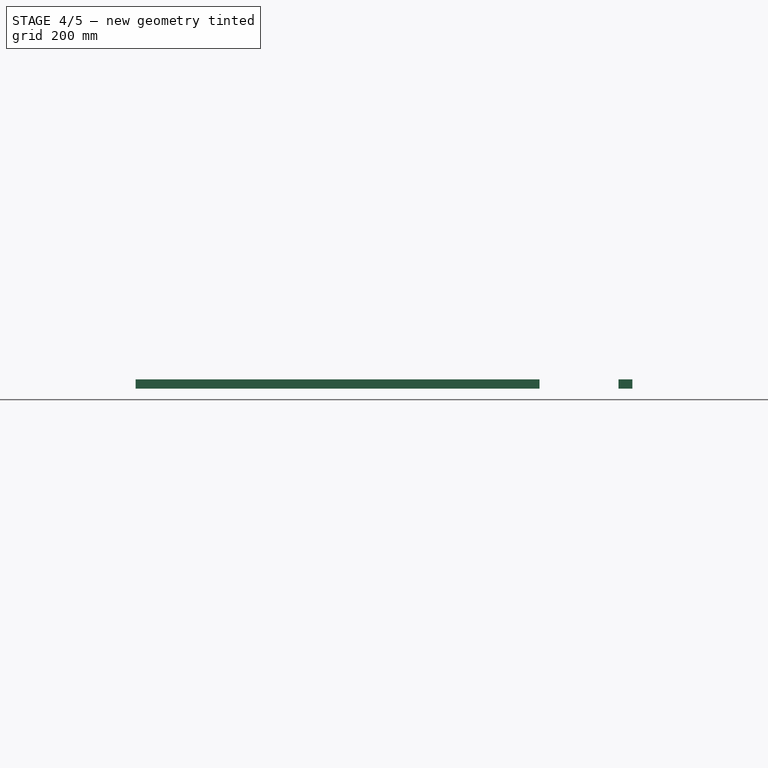
[diagram: stage 4 of 5 — front view after this stage's code; geometry added in this stage tinted green]
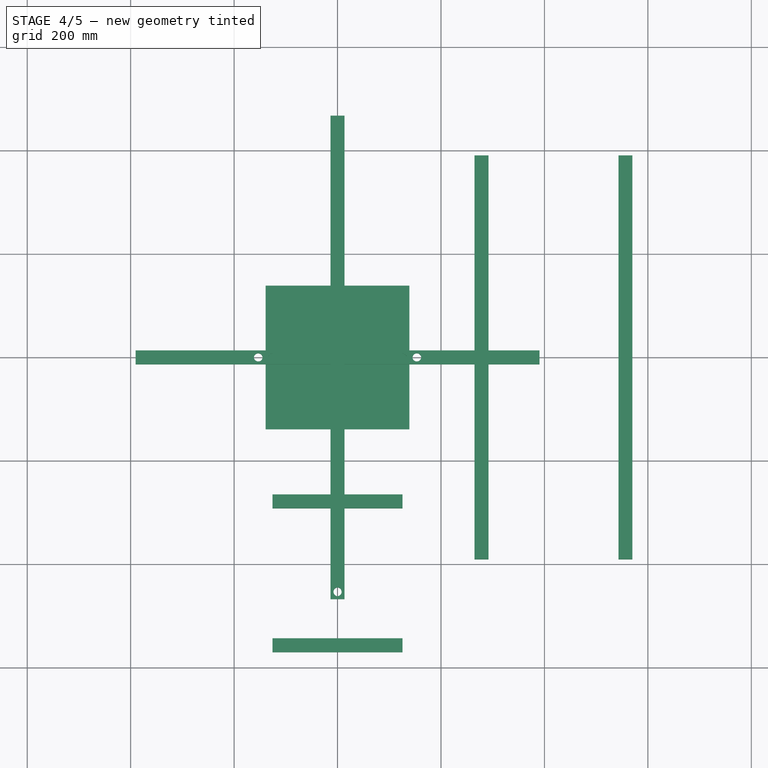
[diagram: stage 4 of 5 — top view after this stage's code; geometry added in this stage tinted green]
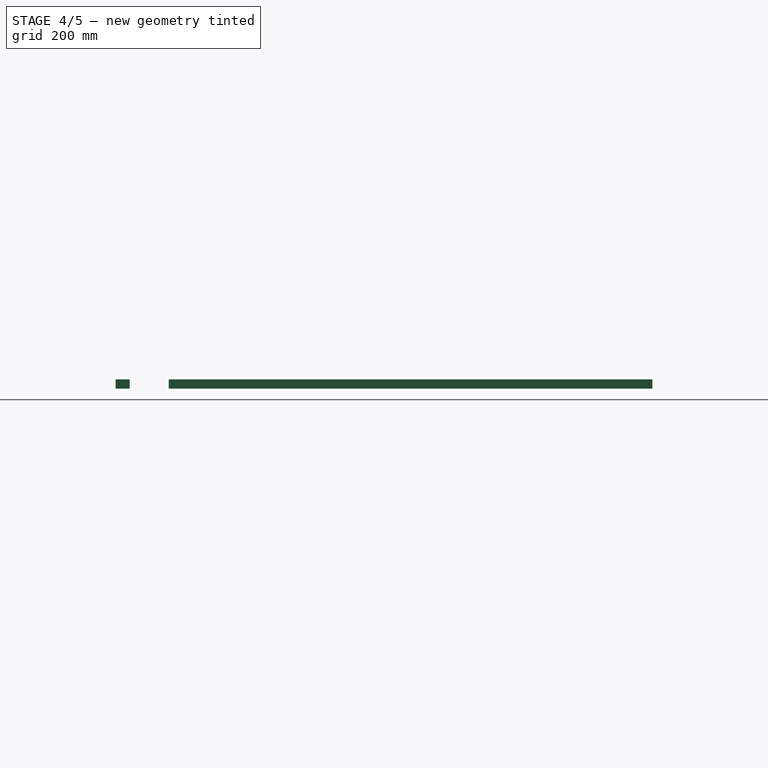
[diagram: stage 4 of 5 — right view after this stage's code; geometry added in this stage tinted green]
FEATURE [Sketcher::SketchObject] Sketch002
  ArcFitTolerance = 0
  AttachmentSupport = -> [XY_Plane002]
  ExternalTypes = [0]
  FullyConstrained = true
  MakeInternals = false
  MapMode = 5
  _ExternalGeoVersion = 0
  expr: Constraints[10] = <<Variables>>.PadLength
  expr: Constraints[9] = <<Variables>>.PadLength
  sketch-geometry (4):
    g0: LineSegment StartX=-139 StartY=139 StartZ=0 EndX=139 EndY=139 EndZ=0
    g1: LineSegment StartX=139 StartY=139 StartZ=0 EndX=139 EndY=-139 EndZ=0
    g2: LineSegment StartX=139 StartY=-139 StartZ=0 EndX=-139 EndY=-139 EndZ=0
    g3: LineSegment StartX=-139 StartY=-139 StartZ=0 EndX=-139 EndY=139 EndZ=0
  constraints (11):
    c: Coincident(g0,g1)
    c: Coincident(g1,g2)
    c: Coincident(g2,g3)
    c: Coincident(g3,g0)
    c: Horizontal(g0)
    c: Horizontal(g2)
    c: Vertical(g1)
    c: Vertical(g3)
    c: Symmetric(g0,g1,g-1)
    c: DistanceX(g0,g0) = 278
    c: DistanceY(g1,g1) = 278
FEATURE [PartDesign::Pad] Pad002
  Direction = (0,0,1)
  Length = 6
  Length2 = 100
  Profile = -> Sketch002
  SideType = 0
  Suppressed = false
  Type = 0
  Type2 = 0
  expr: Length = <<Variables>>.PadThickness
FEATURE [Sketcher::SketchObject] Sketch003
  ArcFitTolerance = 0
  AttachmentSupport = -> [XY_Plane002]
  ExternalTypes = [0]
  FullyConstrained = true
  MakeInternals = false
  MapMode = 5
  _ExternalGeoVersion = 0
  expr: Constraints[22] = <<Variables>>.PadLength - 120
  expr: Constraints[24] = <<Variables>>.PadLength - 120
  expr: Constraints[28] = <<Variables>>.PadLength / 2 - 14
  expr: Constraints[29] = <<Variables>>.PadLength / 2 - 14
  sketch-geometry (16):
    g0: LineSegment StartX=-79 StartY=125 StartZ=0 EndX=79 EndY=125 EndZ=0
    g1: LineSegment StartX=79 StartY=125 StartZ=0 EndX=79 EndY=102 EndZ=0
    g2: LineSegment StartX=79 StartY=102 StartZ=0 EndX=102 EndY=79 EndZ=0
    g3: LineSegment StartX=102 StartY=79 StartZ=0 EndX=125 EndY=79 EndZ=0
    g4: LineSegment StartX=125 StartY=79 StartZ=0 EndX=125 EndY=-79 EndZ=0
    g5: LineSegment StartX=125 StartY=-79 StartZ=0 EndX=102 EndY=-79 EndZ=0
    g6: LineSegment StartX=102 StartY=-79 StartZ=0 EndX=79 EndY=-102 EndZ=0
    g7: LineSegment StartX=79 StartY=-102 StartZ=0 EndX=79 EndY=-125 EndZ=0
    g8: LineSegment StartX=79 StartY=-125 StartZ=0 EndX=-79 EndY=-125 EndZ=0
    g9: LineSegment StartX=-79 StartY=-125 StartZ=0 EndX=-79 EndY=-102 EndZ=0
    g10: LineSegment StartX=-79 StartY=-102 StartZ=0 EndX=-102 EndY=-79 EndZ=0
    g11: LineSegment StartX=-102 StartY=-79 StartZ=0 EndX=-125 EndY=-79 EndZ=0
    g12: LineSegment StartX=-125 StartY=-79 StartZ=0 EndX=-125 EndY=79 EndZ=0
    g13: LineSegment StartX=-125 StartY=79 StartZ=0 EndX=-102 EndY=79 EndZ=0
    g14: LineSegment StartX=-102 StartY=79 StartZ=0 EndX=-79 EndY=102 EndZ=0
    g15: LineSegment StartX=-79 StartY=102 StartZ=0 EndX=-79 EndY=125 EndZ=0
  constraints (38):
    c: Coincident(g0,g1)
    c: Vertical(g1)
    c: Coincident(g1,g2)
    c: Coincident(g2,g3)
    c: Horizontal(g3)
    c: Coincident(g3,g4)
    c: Vertical(g4)
    c: Coincident(g4,g5)
    c: Horizontal(g5)
    c: Coincident(g5,g6)
    c: Coincident(g6,g7)
    c: Vertical(g7)
    c: Coincident(g7,g8)
    c: Horizontal(g8)
    c: Coincident(g8,g9)
    c: Coincident(g9,g10)
    c: Coincident(g10,g11)
    c: Coincident(g11,g12)
    c: Coincident(g12,g13)
    c: Coincident(g13,g14)
    c: Coincident(g14,g15)
    c: Coincident(g15,g0)
    c: DistanceX(g0,g0) = 158
    c: Symmetric(g0,g0,g-2)
    c: DistanceY(g12,g12) = 158
    c: Symmetric(g12,g11,g-1)
    c: DistanceY(g15,g15) = 23
    c: DistanceX(g13,g13) = 23
    c: DistanceY(g-1,g0) = 125
    c: DistanceX(g12,g-1) = 125
    c: Symmetric(g14,g1,g-2)
    c: Symmetric(g13,g2,g-2)
    c: Symmetric(g12,g3,g-2)
    c: Symmetric(g13,g10,g-1)
    c: Symmetric(g14,g9,g-1)
    c: Symmetric(g0,g8,g-1)
    c: Symmetric(g13,g5,g-1)
    c: Symmetric(g14,g6,g-1)
FEATURE [PartDesign::Pocket] Pocket
  BaseFeature = -> Pad002
  Direction = (0,0,-1)
  Length = 5
  Length2 = 100
  Profile = -> Sketch003
  SideType = 2
  Suppressed = false
  Type = 1
  Type2 = 0
FEATURE [PartDesign::Body] Body015
  AllowCompound = true
  Group = -> [Sketch022,Pad015,Sketch023,Pocket012]
  Origin = -> Origin027
  Tip = -> Pocket012
FEATURE [App::Part] Part  label="PolycarbonatePad_Part"
  Group = -> [Body015]
  Origin = -> Origin026
  Placement = pos=(278.333,278.333,24) rot=(0,0,1;0rad)
  expr: .Placement.Base.x = <<Variables>>.OveralPadLength / 3
  expr: .Placement.Base.y = <<Variables>>.OveralPadLength / 3
  expr: .Placement.Base.z = <<Variables>>.OverallPadThickness + <<Variables>>.PadThickness
FEATURE [App::Link] Link  label="Pad_UpLeft_Part - Link(Pad_Up_Part)"
  LinkPlacement = pos=(-278.333,278.333,18) rot=(0,0,1;0rad)
  LinkedObject = -> Part002
  Placement = pos=(-278.333,278.333,18) rot=(0,0,1;0rad)
  expr: .Placement.Base.x = -<<Variables>>.OveralPadLength / 3
FEATURE [App::Link] Link015  label="Pad_UpRight_Part - Link015(Pad_Up_Part)"
  LinkPlacement = pos=(278.333,278.333,18) rot=(0,0,1;0rad)
  LinkedObject = -> Part002
  Placement = pos=(278.333,278.333,18) rot=(0,0,1;0rad)
  expr: .Placement.Base.x = <<Variables>>.OveralPadLength / 3
FEATURE [App::Link] Link016  label="Pad_Left_Part - Link016(Pad_Up_Part)"
  LinkPlacement = pos=(-278.333,0,18) rot=(0,0,1;0rad)
  LinkedObject = -> Part002
  Placement = pos=(-278.333,0,18) rot=(0,0,1;0rad)
  expr: .Placement.Base.x = -<<Variables>>.OveralPadLength / 3
FEATURE [App::Link] Link017  label="Pad_Right_Part - Link017(Pad_Up_Part)"
  LinkPlacement = pos=(278.333,0,18) rot=(0,0,1;0rad)
  LinkedObject = -> Part002
  Placement = pos=(278.333,0,18) rot=(0,0,1;0rad)
  expr: .Placement.Base.x = <<Variables>>.OveralPadLength / 3
FEATURE [App::Link] Link018  label="Pad_BottomLeft_Part - Link018(Pad_Up_Part)"
  LinkPlacement = pos=(-278.333,-278.333,18) rot=(0,0,1;0rad)
  LinkedObject = -> Part002
  Placement = pos=(-278.333,-278.333,18) rot=(0,0,1;0rad)
  expr: .Placement.Base.x = -<<Variables>>.OveralPadLength / 3
  expr: .Placement.Base.y = -<<Variables>>.OveralPadLength / 3
FEATURE [App::Link] Link019  label="Pad_BottomRight_Part - Link019(Pad_Up_Part)"
  LinkPlacement = pos=(278.333,-278.333,18) rot=(0,0,1;0rad)
  LinkedObject = -> Part002
  Placement = pos=(278.333,-278.333,18) rot=(0,0,1;0rad)
  expr: .Placement.Base.x = <<Variables>>.OveralPadLength / 3
  expr: .Placement.Base.y = -<<Variables>>.OveralPadLength / 3
FEATURE [App::Link] Link020  label="Pad_Bottom_Part - Link020(Pad_Up_Part)"
  LinkPlacement = pos=(0,-278.333,18) rot=(0,0,1;0rad)
  LinkedObject = -> Part002
  Placement = pos=(0,-278.333,18) rot=(0,0,1;0rad)
  expr: .Placement.Base.y = -<<Variables>>.OveralPadLength / 3
FEATURE [Sketcher::SketchObject] Sketch024
  ArcFitTolerance = 0
  AttachmentSupport = -> [XY_Plane017]
  ExternalTypes = [0]
  FullyConstrained = true
  MakeInternals = false
  MapMode = 5
  _ExternalGeoVersion = 0
  expr: Constraints[8] = <<Variables>>.ContactLength
  expr: Constraints[9] = <<Variables>>.ContactLength
  sketch-geometry (4):
    g0: LineSegment StartX=-83 StartY=83 StartZ=0 EndX=-83 EndY=-83 EndZ=0
    g1: LineSegment StartX=-83 StartY=-83 StartZ=0 EndX=83 EndY=-83 EndZ=0
    g2: LineSegment StartX=83 StartY=-83 StartZ=0 EndX=83 EndY=83 EndZ=0
    g3: LineSegment StartX=83 StartY=83 StartZ=0 EndX=-83 EndY=83 EndZ=0
  constraints (11):
    c: Coincident(g0,g1)
    c: Coincident(g1,g2)
    c: Coincident(g2,g3)
    c: Coincident(g3,g0)
    c: Vertical(g0)
    c: Vertical(g2)
    c: Horizontal(g1)
    c: Horizontal(g3)
    c: DistanceX(g3,g3) = 166
    c: DistanceY(g0,g0) = 166
    c: Symmetric(g2,g0,g-1)
FEATURE [PartDesign::Pad] Pad016
  AlongSketchNormal = false
  Direction = (0,0,1)
  Length = 0.5
  Length2 = 100
  Profile = -> Sketch024
  SideType = 0
  Suppressed = false
  Type = 0
  Type2 = 0
  expr: Length = Spreadsheet.ContactThickness
FEATURE [PartDesign::Body] Body016  label="ContactBottom_Body"
  AllowCompound = true
  Group = -> [Sketch024,Pad016]
  Origin = -> Origin029
  Tip = -> Pad016
FEATURE [Sketcher::SketchObject] Sketch025
  ArcFitTolerance = 0
  AttachmentSupport = -> [XY_Plane018]
  ExternalTypes = [0]
  FullyConstrained = true
  MakeInternals = false
  MapMode = 5
  _ExternalGeoVersion = 0
  expr: Constraints[32] = <<Variables>>.ContactLength / 2
  expr: Constraints[33] = <<Variables>>.ContactLength / 2
  sketch-geometry (16):
    g0: LineSegment StartX=-83 StartY=83 StartZ=0 EndX=-63 EndY=83 EndZ=0
    g1: LineSegment StartX=-63 StartY=83 StartZ=0 EndX=-63 EndY=63 EndZ=0
    g2: LineSegment StartX=-63 StartY=63 StartZ=0 EndX=-83 EndY=63 EndZ=0
    g3: LineSegment StartX=-83 StartY=63 StartZ=0 EndX=-83 EndY=83 EndZ=0
    g4: LineSegment StartX=63 StartY=83 StartZ=0 EndX=83 EndY=83 EndZ=0
    g5: LineSegment StartX=83 StartY=83 StartZ=0 EndX=83 EndY=63 EndZ=0
    g6: LineSegment StartX=83 StartY=63 StartZ=0 EndX=63 EndY=63 EndZ=0
    g7: LineSegment StartX=63 StartY=63 StartZ=0 EndX=63 EndY=83 EndZ=0
    g8: LineSegment StartX=-83 StartY=-63 StartZ=0 EndX=-63 EndY=-63 EndZ=0
    g9: LineSegment StartX=-63 StartY=-63 StartZ=0 EndX=-63 EndY=-83 EndZ=0
    g10: LineSegment StartX=-63 StartY=-83 StartZ=0 EndX=-83 EndY=-83 EndZ=0
    g11: LineSegment StartX=-83 StartY=-83 StartZ=0 EndX=-83 EndY=-63 EndZ=0
    g12: LineSegment StartX=63 StartY=-63 StartZ=0 EndX=83 EndY=-63 EndZ=0
    g13: LineSegment StartX=83 StartY=-63 StartZ=0 EndX=83 EndY=-83 EndZ=0
    g14: LineSegment StartX=83 StartY=-83 StartZ=0 EndX=63 EndY=-83 EndZ=0
    g15: LineSegment StartX=63 StartY=-83 StartZ=0 EndX=63 EndY=-63 EndZ=0
  constraints (42):
    c: Coincident(g0,g1)
    c: Coincident(g1,g2)
    c: Coincident(g2,g3)
    c: Coincident(g3,g0)
    c: Horizontal(g0)
    c: Horizontal(g2)
    c: Vertical(g1)
    c: Vertical(g3)
    c: Coincident(g4,g5)
    c: Coincident(g5,g6)
    c: Coincident(g6,g7)
    c: Coincident(g7,g4)
    c: Horizontal(g4)
    c: Horizontal(g6)
    c: Vertical(g5)
    c: Vertical(g7)
    c: Coincident(g8,g9)
    c: Coincident(g9,g10)
    c: Coincident(g10,g11)
    c: Coincident(g11,g8)
    c: Horizontal(g8)
    c: Horizontal(g10)
    c: Vertical(g9)
    c: Vertical(g11)
    c: Coincident(g12,g13)
    c: Coincident(g13,g14)
    c: Coincident(g14,g15)
    c: Coincident(g15,g12)
    c: Horizontal(g12)
    c: Horizontal(g14)
    c: Vertical(g13)
    c: Vertical(g15)
    c: DistanceX(g0,g-1) = 83
    c: DistanceY(g-1,g0) = 83
    c: DistanceX(g0,g0) = 20
    c: DistanceY(g3,g3) = 20
    c: Symmetric(g4,g0,g-2)
    c: Symmetric(g6,g1,g-2)
    c: Symmetric(g10,g0,g-1)
    c: Symmetric(g8,g1,g-1)
    c: Symmetric(g1,g12,g-1)
    c: Symmetric(g0,g13,g-1)
FEATURE [PartDesign::Pad] Pad017
  AlongSketchNormal = false
  Direction = (0,0,1)
  Length = 1
  Length2 = 100
  Profile = -> Sketch025
  SideType = 0
  Suppressed = false
  Type = 0
  Type2 = 0
  expr: Length = <<Variables>>.ContactIsolationThickness
FEATURE [PartDesign::Body] Body017  label="ContactIsolation_Body"
  AllowCompound = true
  Group = -> [Sketch025,Pad017]
  Origin = -> Origin030
  Placement = pos=(0,0,0.5) rot=(0,0,1;0rad)
  Tip = -> Pad017
  expr: .Placement.Base.z = Spreadsheet.ContactThickness
FEATURE [App::Link] Link021  label="ContactUp_Body - Link021(ContactBottom_Body)"
  LinkPlacement = pos=(0,0,2) rot=(0.707107,0.707107,0;3.14159rad)
  LinkedObject = -> Body016
  Placement = pos=(0,0,2) rot=(0.707107,0.707107,0;3.14159rad)
  expr: .Placement.Base.z = Spreadsheet.ContactThickness * 2 + <<Variables>>.ContactIsolationThickness
FEATURE [App::Part] Part008  label="Contacts_Part"
  Group = -> [Body016,Body017,Link021]
  Origin = -> Origin028
FEATURE [Sketcher::SketchObject] Sketch026
  ArcFitTolerance = 0
  AttachmentSupport = -> [XY_Plane019]
  ExternalTypes = [0]
  FullyConstrained = true
  MakeInternals = false
  MapMode = 5
  _ExternalGeoVersion = 0
  expr: Constraints[8] = <<Variables>>.PaddingPadLength
  expr: Constraints[9] = <<Variables>>.PaddingPadLength
  sketch-geometry (4):
    g0: LineSegment StartX=-72 StartY=72 StartZ=0 EndX=72 EndY=72 EndZ=0
    g1: LineSegment StartX=72 StartY=72 StartZ=0 EndX=72 EndY=-72 EndZ=0
    g2: LineSegment StartX=72 StartY=-72 StartZ=0 EndX=-72 EndY=-72 EndZ=0
    g3: LineSegment StartX=-72 StartY=-72 StartZ=0 EndX=-72 EndY=72 EndZ=0
  constraints (11):
    c: Coincident(g0,g1)
    c: Coincident(g1,g2)
    c: Coincident(g2,g3)
    c: Coincident(g3,g0)
    c: Horizontal(g0)
    c: Horizontal(g2)
    c: Vertical(g1)
    c: Vertical(g3)
    c: DistanceX(g0,g0) = 144
    c: DistanceY(g3,g3) = 144
    c: Symmetric(g0,g1,g-1)
FEATURE [PartDesign::Pad] Pad018
  AlongSketchNormal = false
  Direction = (0,0,1)
  Length = 2
  Length2 = 100
  Profile = -> Sketch026
  SideType = 0
  Suppressed = false
  Type = 0
  Type2 = 0
  expr: Length = <<Variables>>.PaddingPadThickness
FEATURE [PartDesign::Body] Body018  label="FirstPadding_Body"
  AllowCompound = true
  Group = -> [Sketch026,Pad018]
  Origin = -> Origin032
  Tip = -> Pad018
FEATURE [Sketcher::SketchObject] Sketch027
  ArcFitTolerance = 0
  AttachmentSupport = -> [XY_Plane020]
  ExternalTypes = [0]
  FullyConstrained = true
  MakeInternals = false
  MapMode = 5
  _ExternalGeoVersion = 0
  sketch-geometry (48):
    g0: BSplineCurve PolesCount=3 KnotsCount=2 Degree=2 IsPeriodic=0
    g1: BSplineCurve PolesCount=3 KnotsCount=2 Degree=2 IsPeriodic=0
    g2: BSplineCurve PolesCount=3 KnotsCount=2 Degree=2 IsPeriodic=0
    g3: BSplineCurve PolesCount=3 KnotsCount=2 Degree=2 IsPeriodic=0
    g4: Circle [constr] CenterX=-52.5 CenterY=78.5 CenterZ=0 NormalX=0 NormalY=0 NormalZ=1 AngleXU=0 Radius=1
    g5: Circle [constr] CenterX=0 CenterY=69.5 CenterZ=0 NormalX=0 NormalY=0 NormalZ=1 AngleXU=0 Radius=1
    g6: Circle [constr] CenterX=52.5 CenterY=78.5 CenterZ=0 NormalX=0 NormalY=0 NormalZ=1 AngleXU=0 Radius=1
    g7: GeomPoint [constr] X=-52.5 Y=78.5 Z=0
    g8: GeomPoint [constr] X=52.5 Y=78.5 Z=0
    g9: Circle [constr] CenterX=78.5 CenterY=52.5 CenterZ=0 NormalX=0 NormalY=0 NormalZ=1 AngleXU=0 Radius=1
    g10: Circle [constr] CenterX=69.5 CenterY=0 CenterZ=0 NormalX=0 NormalY=0 NormalZ=1 AngleXU=0 Radius=1
    g11: Circle [constr] CenterX=78.5 CenterY=-52.5 CenterZ=0 NormalX=0 NormalY=0 NormalZ=1 AngleXU=0 Radius=1
    g12: GeomPoint [constr] X=78.5 Y=52.5 Z=0
    g13: GeomPoint [constr] X=78.5 Y=-52.5 Z=0
    g14: BSplineCurve PolesCount=3 KnotsCount=2 Degree=2 IsPeriodic=0
    g15: Circle [constr] CenterX=52.5 CenterY=78.5 CenterZ=0 NormalX=0 NormalY=0 NormalZ=1 AngleXU=0 Radius=1
    g16: Circle [constr] CenterX=78.5 CenterY=78.5 CenterZ=0 NormalX=0 NormalY=0 NormalZ=1 AngleXU=0 Radius=1
    g17: Circle [constr] CenterX=78.5 CenterY=52.5 CenterZ=0 NormalX=0 NormalY=0 NormalZ=1 AngleXU=0 Radius=1
    g18: GeomPoint [constr] X=52.5 Y=78.5 Z=0
    g19: GeomPoint [constr] X=78.5 Y=52.5 Z=0
    g20: BSplineCurve PolesCount=3 KnotsCount=2 Degree=2 IsPeriodic=0
    g21: BSplineCurve PolesCount=3 KnotsCount=2 Degree=2 IsPeriodic=0
    g22: BSplineCurve PolesCount=3 KnotsCount=2 Degree=2 IsPeriodic=0
    g23: Circle [constr] CenterX=52.5 CenterY=-78.5 CenterZ=0 NormalX=0 NormalY=0 NormalZ=1 AngleXU=0 Radius=1
    g24: Circle [constr] CenterX=78.5 CenterY=-78.5 CenterZ=0 NormalX=0 NormalY=0 NormalZ=1 AngleXU=0 Radius=1
    g25: Circle [constr] CenterX=78.5 CenterY=-52.5 CenterZ=0 NormalX=0 NormalY=0 NormalZ=1 AngleXU=0 Radius=1
    g26: GeomPoint [constr] X=52.5 Y=-78.5 Z=0
    g27: GeomPoint [constr] X=78.5 Y=-52.5 Z=0
    g28: Circle [constr] CenterX=52.5 CenterY=-78.5 CenterZ=0 NormalX=0 NormalY=0 NormalZ=1 AngleXU=0 Radius=1
    g29: Circle [constr] CenterX=0 CenterY=-69.5 CenterZ=0 NormalX=0 NormalY=0 NormalZ=1 AngleXU=0 Radius=1
    g30: Circle [constr] CenterX=-52.5 CenterY=-78.5 CenterZ=0 NormalX=0 NormalY=0 NormalZ=1 AngleXU=0 Radius=1
    g31: GeomPoint [constr] X=52.5 Y=-78.5 Z=0
    g32: GeomPoint [constr] X=-52.5 Y=-78.5 Z=0
    g33: Circle [constr] CenterX=-78.5 CenterY=-52.5 CenterZ=0 NormalX=0 NormalY=0 NormalZ=1 AngleXU=0 Radius=1
    g34: Circle [constr] CenterX=-78.5 CenterY=-78.5 CenterZ=0 NormalX=0 NormalY=0 NormalZ=1 AngleXU=0 Radius=1
    g35: Circle [constr] CenterX=-52.5 CenterY=-78.5 CenterZ=0 NormalX=0 NormalY=0 NormalZ=1 AngleXU=0 Radius=1
    g36: GeomPoint [constr] X=-78.5 Y=-52.5 Z=0
    g37: GeomPoint [constr] X=-52.5 Y=-78.5 Z=0
    g38: Circle [constr] CenterX=-78.5 CenterY=-52.5 CenterZ=0 NormalX=0 NormalY=0 NormalZ=1 AngleXU=0 Radius=1
    g39: Circle [constr] CenterX=-69.5 CenterY=0 CenterZ=0 NormalX=0 NormalY=0 NormalZ=1 AngleXU=0 Radius=1
    g40: Circle [constr] CenterX=-78.5 CenterY=52.5 CenterZ=0 NormalX=0 NormalY=0 NormalZ=1 AngleXU=0 Radius=1
    g41: GeomPoint [constr] X=-78.5 Y=-52.5 Z=0
    g42: GeomPoint [constr] X=-78.5 Y=52.5 Z=0
    g43: Circle [constr] CenterX=-52.5 CenterY=78.5 CenterZ=0 NormalX=0 NormalY=0 NormalZ=1 AngleXU=0 Radius=1
    g44: Circle [constr] CenterX=-78.5 CenterY=78.5 CenterZ=0 NormalX=0 NormalY=0 NormalZ=1 AngleXU=0 Radius=1
    g45: Circle [constr] CenterX=-78.5 CenterY=52.5 CenterZ=0 NormalX=0 NormalY=0 NormalZ=1 AngleXU=0 Radius=1
    g46: GeomPoint [constr] X=-52.5 Y=78.5 Z=0
    g47: GeomPoint [constr] X=-78.5 Y=52.5 Z=0
  constraints (61):
    c: InternalAlignment(g4-g8 -> g0) x5
    c: InternalAlignment(g9-g13 -> g1) x5
    c: Coincident(g14,g0)
    c: Coincident(g14,g1)
    c: InternalAlignment(g15-g19 -> g14) x5
    c: Coincident(g20,g0)
    c: Coincident(g20,g3)
    c: Coincident(g21,g3)
    c: Coincident(g21,g2)
    c: Coincident(g22,g2)
    c: Coincident(g22,g1)
    c: InternalAlignment(g23-g27 -> g22) x5
    c: InternalAlignment(g28-g32 -> g2) x5
    c: InternalAlignment(g33-g37 -> g21) x5
    c: InternalAlignment(g38-g42 -> g3) x5
    c: InternalAlignment(g43-g47 -> g20) x5
    c: Symmetric(g44,g24,g-1)
    c: Symmetric(g16,g34,g-1)
    c: Symmetric(g39,g10,g-1)
    c: Symmetric(g5,g29,g-1)
    c: DistanceX(g-1,g5) = 0
    c: DistanceY(g-1,g39) = 0
    c: Symmetric(g0,g0,g-2)
    c: Symmetric(g3,g1,g-2)
    c: Symmetric(g0,g2,g-1)
    c: Symmetric(g3,g3,g-1)
    c: Symmetric(g0,g2,g-1)
    c: Symmetric(g3,g1,g-1)
    c: Symmetric(g44,g16,g-2)
    c: Weight(g44) = 1
    c: Weight(g45) = 1
    c: Weight(g4) = 1
    c: Weight(g5) = 1
    c: Weight(g6) = 1
    c: Weight(g9) = 1
    c: Weight(g10) = 1
    c: Weight(g11) = 1
    c: Weight(g15) = 1
    c: Weight(g16) = 1
    c: Weight(g17) = 1
    c: Weight(g23) = 1
    c: Weight(g24) = 1
    c: Weight(g25) = 1
    c: Weight(g28) = 1
    c: Weight(g29) = 1
    c: Weight(g30) = 1
    c: Weight(g33) = 1
    c: Weight(g34) = 1
    c: Weight(g35) = 1
    c: Weight(g38) = 1
    c: Weight(g39) = 1
    c: Weight(g40) = 1
    c: Weight(g43) = 1
    c: DistanceY(g2,g0) = 157
    c: DistanceX(g3,g1) = 157
    c: DistanceY(g29,g5) = 139
    c: DistanceX(g39,g10) = 139
    c: DistanceY(g3,g3) = 105
    c: DistanceX(g0,g0) = 105
    c: DistanceX(g44,g16) = 157
    c: DistanceY(g34,g44) = 157
FEATURE [PartDesign::Pad] Pad019
  AlongSketchNormal = false
  Direction = (0,0,1)
  Length = 2
  Length2 = 100
  Profile = -> Sketch027
  SideType = 0
  Suppressed = false
  Type = 0
  Type2 = 0
  expr: Length = <<Variables>>.PaddingPadThickness
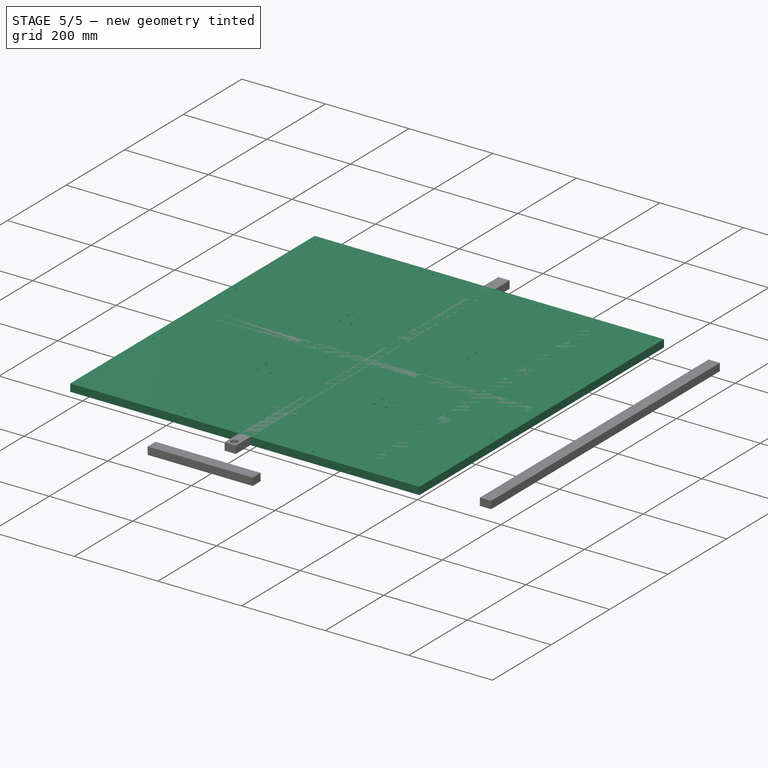
[diagram: stage 5 of 5 — iso view after this stage's code; geometry added in this stage tinted green]
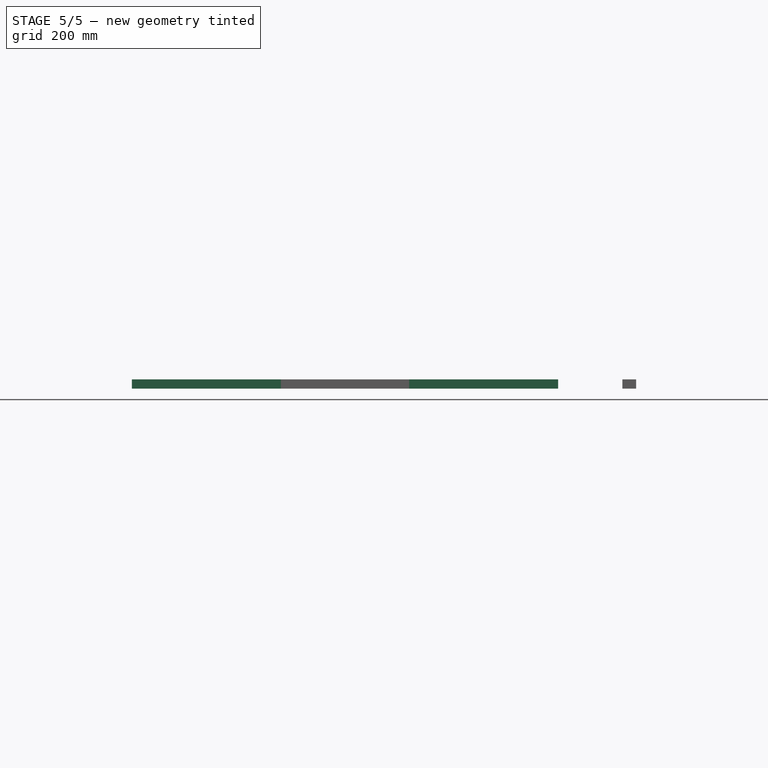
[diagram: stage 5 of 5 — front view after this stage's code; geometry added in this stage tinted green]
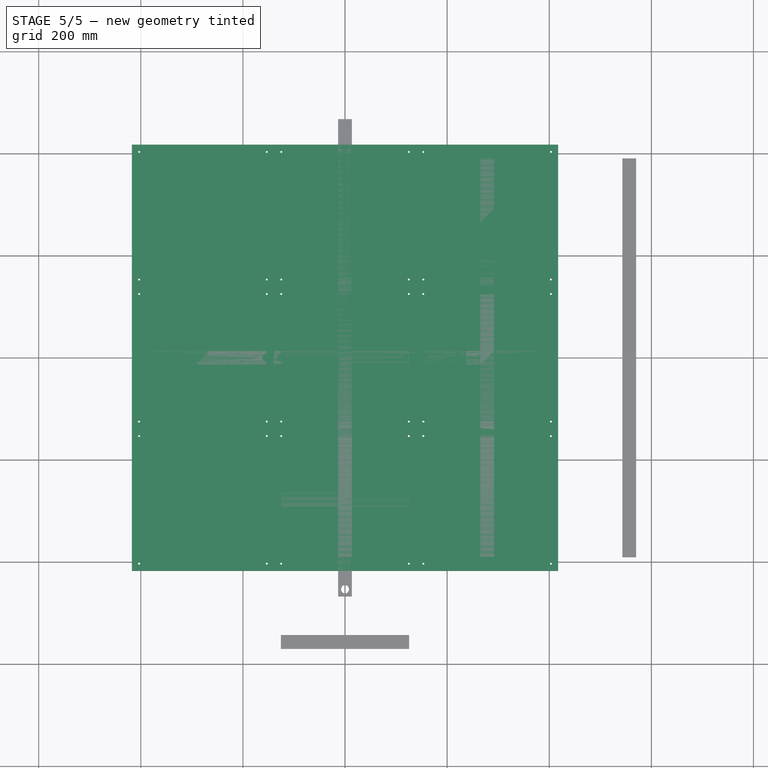
[diagram: stage 5 of 5 — top view after this stage's code; geometry added in this stage tinted green]
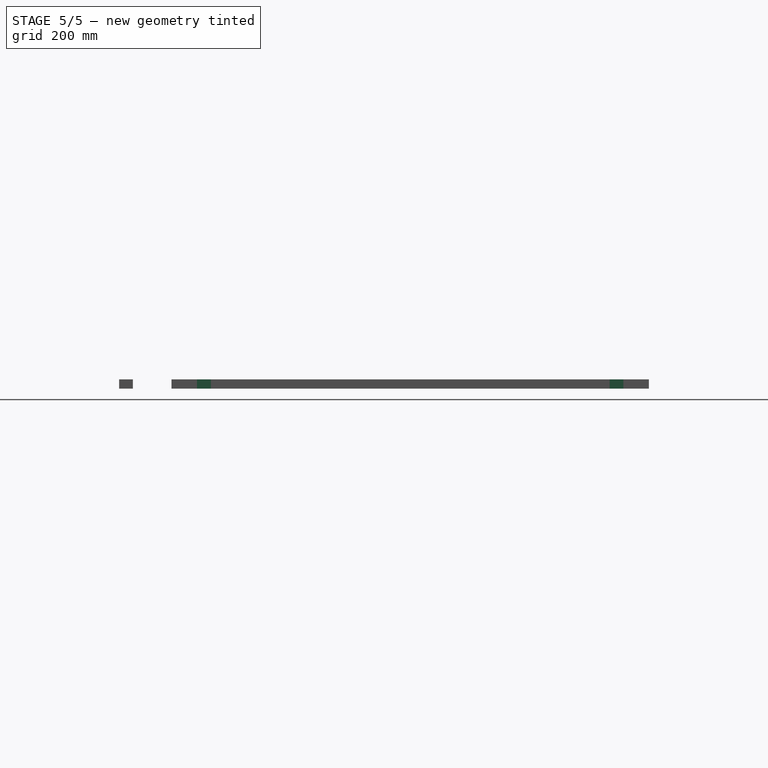
[diagram: stage 5 of 5 — right view after this stage's code; geometry added in this stage tinted green]
FEATURE [Sketcher::SketchObject] Sketch
  ArcFitTolerance = 0
  AttachmentSupport = -> [XY_Plane]
  ExternalTypes = [0]
  FullyConstrained = true
  MakeInternals = false
  MapMode = 5
  _ExternalGeoVersion = 0
  expr: Constraints[10] = <<Variables>>.OveralPadLength
  expr: Constraints[9] = <<Variables>>.OveralPadLength
  sketch-geometry (4):
    g0: LineSegment StartX=-417.5 StartY=417.5 StartZ=0 EndX=417.5 EndY=417.5 EndZ=0
    g1: LineSegment StartX=417.5 StartY=417.5 StartZ=0 EndX=417.5 EndY=-417.5 EndZ=0
    g2: LineSegment StartX=417.5 StartY=-417.5 StartZ=0 EndX=-417.5 EndY=-417.5 EndZ=0
    g3: LineSegment StartX=-417.5 StartY=-417.5 StartZ=0 EndX=-417.5 EndY=417.5 EndZ=0
  constraints (11):
    c: Coincident(g0,g1)
    c: Coincident(g1,g2)
    c: Coincident(g2,g3)
    c: Coincident(g3,g0)
    c: Horizontal(g0)
    c: Horizontal(g2)
    c: Vertical(g1)
    c: Vertical(g3)
    c: Symmetric(g0,g1,g-1)
    c: DistanceX(g0,g0) = 835
    c: DistanceY(g1,g1) = 835
FEATURE [PartDesign::Pad] Pad
  Direction = (0,0,1)
  Length = 18
  Length2 = 100
  Profile = -> Sketch
  SideType = 0
  Suppressed = false
  Type = 0
  Type2 = 0
  expr: Length = <<Variables>>.OverallPadThickness
FEATURE [Sketcher::SketchObject] Sketch004  label="Sketch_Screw_Holes"
  ArcFitTolerance = 0
  AttachmentSupport = -> [Pad002]
  ExternalTypes = [0]
  FullyConstrained = true
  MakeInternals = false
  MapMode = 5
  Placement = pos=(0,0,0) rot=(1,0,0;3.14159rad)
  _ExternalGeoVersion = 0
  expr: Constraints[0] = <<Variables>>.PadScrewDiameter
  expr: Constraints[1] = <<Variables>>.PadScrewDiameter
  expr: Constraints[2] = <<Variables>>.PadScrewDiameter
  expr: Constraints[3] = <<Variables>>.PadScrewDiameter
  expr: Constraints[4] = <<Variables>>.PadLength / 2 - <<Variables>>.ScrewCornerPosition
  expr: Constraints[5] = <<Variables>>.PadLength / 2 - <<Variables>>.ScrewCornerPosition
  sketch-geometry (4):
    g0: Circle CenterX=-125 CenterY=125 CenterZ=0 NormalX=0 NormalY=0 NormalZ=1 AngleXU=0 Radius=2
    g1: Circle CenterX=125 CenterY=125 CenterZ=0 NormalX=0 NormalY=0 NormalZ=1 AngleXU=0 Radius=2
    g2: Circle CenterX=125 CenterY=-125 CenterZ=0 NormalX=0 NormalY=0 NormalZ=1 AngleXU=0 Radius=2
    g3: Circle CenterX=-125 CenterY=-125 CenterZ=0 NormalX=0 NormalY=0 NormalZ=1 AngleXU=0 Radius=2
  constraints (9):
    c: Diameter(g0) = 4
    c: Diameter(g1) = 4
    c: Diameter(g2) = 4
    c: Diameter(g3) = 4
    c: DistanceX(g0,g-1) = 125
    c: DistanceY(g-1,g0) = 125
    c: Symmetric(g0,g1,g-2)
    c: Symmetric(g0,g3,g-1)
    c: Symmetric(g0,g2,g-1)
FEATURE [PartDesign::Pocket] Pocket001  label="Screw_Pocket"
  BaseFeature = -> Pocket
  Direction = (0,0,1)
  Length = 5
  Length2 = 100
  Profile = -> Sketch004
  SideType = 2
  Suppressed = false
  Type = 1
  Type2 = 0
FEATURE [Spreadsheet::Sheet] Spreadsheet  label="Variables"
  cells = A2='Variables for global size of DDR pad; B4='Dance Pad overall pad length (mm) :; C4(OveralPadLength)=835; B5='Overall pad thickness (mm) :; C5(OverallPadThickness)=18; A7='Variables for a single Pad; B9='Pad length (mm) :; C9(PadLength)=278; B10='Pad thickness (mm) :; C10(PadThickness)=6; B11='Pad screw diameter (mm) :; C11(PadScrewDiameter)=4; B12='Screw corner position (mm) :; C12(ScrewCornerPosition)=14; A14='Variables for polycarbonate; B16='Polycarbonate thickness (mm) :; C16(PolycarbonateThickness)=3; A18='Variables for contacts; B20='Contact length (mm) :; C20(ContactLength)=166; B21='Contact thickness (mm) :; C21(ContactThickness)=0.5; B22='Contact isolation thickness (mm) :; C22(ContactIsolationThickness)=1; B23='Contact tongue length (mm) :; C23(ContactTongueLength)=20; B24='Contact tongue width (mm) :; C24(ContactTongueWidth)=5; A26='Variables for padding pads; B28='Padding pad length (mm) :; C28(PaddingPadLength)=144; B29='Padding pad Thickness (mm) :; C29(PaddingPadThickness)=2; A31='Variables for supports; B33='Support thickness (mm) :; C33(SupportThickness)=18; B34='Support height (mm) :; C34(SupportHeight)=27; B35='Washer Clearance diammeter (mm) :; C35(SupportWasherClearanceDiammeter)=17; A37='Variables for commands block; B39='Command width (mm) :; C39(CommandWidth)=100
FEATURE [PartDesign::Fillet] Fillet
  Base = -> Pocket001 [Edge48,Edge40,Edge39,Edge47]
  BaseFeature = -> Pocket001
  Radius = 3
  SupportTransform = false
  Suppressed = false
  UseAllEdges = false
FEATURE [PartDesign::Body] Body014
  AllowCompound = true
  Group = -> [Sketch020,Pad014,Sketch021,Pocket011]
  Origin = -> Origin025
  Tip = -> Pocket011
FEATURE [App::Part] Part007  label="Pad_Middle_Part"
  Group = -> [Body014]
  Origin = -> Origin024
  Placement = pos=(0,0,18) rot=(0,0,1;0rad)
  expr: .Placement.Base.z = <<Variables>>.OverallPadThickness
FEATURE [Sketcher::SketchObject] Sketch022
  ArcFitTolerance = 0
  AttachmentSupport = -> [XY_Plane016]
  ExternalTypes = [0]
  FullyConstrained = true
  MakeInternals = false
  MapMode = 5
  _ExternalGeoVersion = 0
  expr: Constraints[8] = <<Variables>>.PadLength
  expr: Constraints[9] = <<Variables>>.PadLength
  sketch-geometry (4):
    g0: LineSegment StartX=-139 StartY=139 StartZ=0 EndX=139 EndY=139 EndZ=0
    g1: LineSegment StartX=139 StartY=139 StartZ=0 EndX=139 EndY=-139 EndZ=0
    g2: LineSegment StartX=139 StartY=-139 StartZ=0 EndX=-139 EndY=-139 EndZ=0
    g3: LineSegment StartX=-139 StartY=-139 StartZ=0 EndX=-139 EndY=139 EndZ=0
  constraints (11):
    c: Coincident(g0,g1)
    c: Coincident(g1,g2)
    c: Coincident(g2,g3)
    c: Coincident(g3,g0)
    c: Horizontal(g0)
    c: Horizontal(g2)
    c: Vertical(g1)
    c: Vertical(g3)
    c: DistanceX(g0,g0) = 278
    c: DistanceY(g1,g1) = 278
    c: Symmetric(g0,g1,g-1)
FEATURE [PartDesign::Pad] Pad015
  AlongSketchNormal = false
  Direction = (0,0,1)
  Length = 3
  Length2 = 100
  Profile = -> Sketch022
  SideType = 0
  Suppressed = false
  Type = 0
  Type2 = 0
  expr: Length = <<Variables>>.PolycarbonateThickness
FEATURE [Sketcher::SketchObject] Sketch023
  ArcFitTolerance = 0
  AttachmentSupport = -> [Pad015]
  ExternalTypes = [0]
  FullyConstrained = true
  MakeInternals = false
  MapMode = 5
  Placement = pos=(0,0,3) rot=(0,0,1;0rad)
  _ExternalGeoVersion = 0
  expr: Constraints[0] = <<Variables>>.PadScrewDiameter
  expr: Constraints[1] = <<Variables>>.PadScrewDiameter
  expr: Constraints[2] = <<Variables>>.PadScrewDiameter
  expr: Constraints[3] = <<Variables>>.PadScrewDiameter
  expr: Constraints[4] = <<Variables>>.PadLength / 2 - <<Variables>>.ScrewCornerPosition
  expr: Constraints[5] = <<Variables>>.PadLength / 2 - <<Variables>>.ScrewCornerPosition
  sketch-geometry (4):
    g0: Circle CenterX=-125 CenterY=125 CenterZ=0 NormalX=0 NormalY=0 NormalZ=1 AngleXU=0 Radius=2
    g1: Circle CenterX=125 CenterY=125 CenterZ=0 NormalX=0 NormalY=0 NormalZ=1 AngleXU=0 Radius=2
    g2: Circle CenterX=-125 CenterY=-125 CenterZ=0 NormalX=0 NormalY=0 NormalZ=1 AngleXU=0 Radius=2
    g3: Circle CenterX=125 CenterY=-125 CenterZ=0 NormalX=0 NormalY=0 NormalZ=1 AngleXU=0 Radius=2
  constraints (9):
    c: Diameter(g0) = 4
    c: Diameter(g1) = 4
    c: Diameter(g2) = 4
    c: Diameter(g3) = 4
    c: DistanceX(g0,g-1) = 125
    c: DistanceY(g-1,g0) = 125
    c: Symmetric(g0,g1,g-2)
    c: Symmetric(g0,g2,g-1)
    c: Symmetric(g0,g3,g-1)
FEATURE [PartDesign::Pocket] Pocket012
  BaseFeature = -> Pad015
  Direction = (0,0,-1)
  Length = 5
  Length2 = 100
  Profile = -> Sketch023
  SideType = 2
  Suppressed = false
  Type = 1
  Type2 = 0
FEATURE [PartDesign::Body] Body019  label="SecondPadding_Body"
  AllowCompound = true
  Group = -> [Sketch027,Pad019]
  Origin = -> Origin033
  Placement = pos=(0,0,2) rot=(0,0,1;0.785398rad)
  Tip = -> Pad019
  expr: .Placement.Base.z = <<Variables>>.PaddingPadThickness
FEATURE [App::Part] Part009  label="Padding_Part"
  Group = -> [Body018,Body019]
  Origin = -> Origin031
  Placement = pos=(0,0,2) rot=(0,0,1;0rad)
  expr: .Placement.Base.z = <<Variables>>.ContactThickness * 2 + <<Variables>>.ContactIsolationThickness
FEATURE [App::Part] Part002  label="Pad_Up_Part"
  Group = -> [Body002,Part008,Part009]
  Origin = -> Origin007
  Placement = pos=(0,278.333,18) rot=(0,0,1;0rad)
  expr: .Placement.Base.y = <<Variables>>.OveralPadLength / 3
  expr: .Placement.Base.z = <<Variables>>.OverallPadThickness
FEATURE [PartDesign::SubShapeBinder] Binder  label="Binder(Sketch_Screw_Holes)"
  BindCopyOnChange = 0
  BindMode = 0
  ClaimChildren = false
  Context = -> Part001 [Body.Binder.]
  Fuse = false
  MakeFace = true
  OffsetFill = false
  OffsetIntersection = false
  OffsetJoinType = 0
  OffsetOpenResult = false
  PartialLoad = false
  Relative = true
  Support = -> [Part002[Body002.Sketch004.]]
  _Version = 8
FEATURE [PartDesign::SubShapeBinder] Binder001  label="Binder001(Sketch_Screw_Holes)"
  BindCopyOnChange = 0
  BindMode = 0
  ClaimChildren = false
  Context = -> Part001 [Body.Binder001.]
  Fuse = false
  MakeFace = true
  OffsetFill = false
  OffsetIntersection = false
  OffsetJoinType = 0
  OffsetOpenResult = false
  PartialLoad = false
  Relative = true
  Support = -> [Link[Body002.Sketch004.]]
  _Version = 8
FEATURE [PartDesign::SubShapeBinder] Binder002  label="Binder002(Sketch_Screw_Holes)"
  BindCopyOnChange = 0
  BindMode = 0
  ClaimChildren = false
  Context = -> Part001 [Body.Binder002.]
  Fuse = false
  MakeFace = true
  OffsetFill = false
  OffsetIntersection = false
  OffsetJoinType = 0
  OffsetOpenResult = false
  PartialLoad = false
  Relative = true
  Support = -> [Link015[Body002.Sketch004.]]
  _Version = 8
FEATURE [PartDesign::SubShapeBinder] Binder003  label="Binder003(Sketch_Screw_Holes)"
  BindCopyOnChange = 0
  BindMode = 0
  ClaimChildren = false
  Context = -> Part001 [Body.Binder003.]
  Fuse = false
  MakeFace = true
  OffsetFill = false
  OffsetIntersection = false
  OffsetJoinType = 0
  OffsetOpenResult = false
  PartialLoad = false
  Relative = true
  Support = -> [Link016[Body002.Sketch004.]]
  _Version = 8
FEATURE [PartDesign::SubShapeBinder] Binder004  label="Binder004(Sketch_Screw_Holes)"
  BindCopyOnChange = 0
  BindMode = 0
  ClaimChildren = false
  Context = -> Part001 [Body.Binder004.]
  Fuse = false
  MakeFace = true
  OffsetFill = false
  OffsetIntersection = false
  OffsetJoinType = 0
  OffsetOpenResult = false
  PartialLoad = false
  Relative = true
  Support = -> [Link017[Body002.Sketch004.]]
  _Version = 8
FEATURE [PartDesign::SubShapeBinder] Binder005  label="Binder005(Sketch_Screw_Holes)"
  BindCopyOnChange = 0
  BindMode = 0
  ClaimChildren = false
  Context = -> Part001 [Body.Binder005.]
  Fuse = false
  MakeFace = true
  OffsetFill = false
  OffsetIntersection = false
  OffsetJoinType = 0
  OffsetOpenResult = false
  PartialLoad = false
  Relative = true
  Support = -> [Link018[Body002.Sketch004.]]
  _Version = 8
FEATURE [PartDesign::SubShapeBinder] Binder006  label="Binder006(Sketch_Screw_Holes)"
  BindCopyOnChange = 0
  BindMode = 0
  ClaimChildren = false
  Context = -> Part001 [Body.Binder006.]
  Fuse = false
  MakeFace = true
  OffsetFill = false
  OffsetIntersection = false
  OffsetJoinType = 0
  OffsetOpenResult = false
  PartialLoad = false
  Relative = true
  Support = -> [Link019[Body002.Sketch004.]]
  _Version = 8
FEATURE [PartDesign::SubShapeBinder] Binder007  label="Binder007(Sketch_Screw_Holes)"
  BindCopyOnChange = 0
  BindMode = 0
  ClaimChildren = false
  Context = -> Part001 [Body.Binder007.]
  Fuse = false
  MakeFace = true
  OffsetFill = false
  OffsetIntersection = false
  OffsetJoinType = 0
  OffsetOpenResult = false
  PartialLoad = false
  Relative = true
  Support = -> [Link020[Body002.Sketch004.]]
  _Version = 8
FEATURE [PartDesign::SubShapeBinder] Binder008  label="Binder008(Sketch021)"
  BindCopyOnChange = 0
  BindMode = 0
  ClaimChildren = false
  Context = -> Part001 [Body.Binder008.]
  Fuse = false
  MakeFace = true
  OffsetFill = false
  OffsetIntersection = false
  OffsetJoinType = 0
  OffsetOpenResult = false
  PartialLoad = false
  Relative = true
  Support = -> [Part007[Body014.Sketch021.]]
  _Version = 8
FEATURE [Sketcher::SketchObject] Sketch028
  ArcFitTolerance = 0
  AttachmentSupport = -> [Pad]
  ExternalGeometry = -> [Binder001,Binder,Binder002,Binder003,Binder008,Binder004,Binder005,Binder007,Binder006]
  ExternalTypes = [0]
  FullyConstrained = true
  MakeInternals = false
  MapMode = 5
  Placement = pos=(0,0,18) rot=(0,0,1;0rad)
  _ExternalGeoVersion = 0
  expr: Constraints[36] = <<Variables>>.PadScrewDiameter
  expr: Constraints[37] = <<Variables>>.PadScrewDiameter
  expr: Constraints[38] = <<Variables>>.PadScrewDiameter
  expr: Constraints[39] = <<Variables>>.PadScrewDiameter
  expr: Constraints[40] = <<Variables>>.PadScrewDiameter
  expr: Constraints[41] = <<Variables>>.PadScrewDiameter
  expr: Constraints[42] = <<Variables>>.PadScrewDiameter
  expr: Constraints[43] = <<Variables>>.PadScrewDiameter
  expr: Constraints[44] = <<Variables>>.PadScrewDiameter
  expr: Constraints[45] = <<Variables>>.PadScrewDiameter
  expr: Constraints[46] = <<Variables>>.PadScrewDiameter
  expr: Constraints[47] = <<Variables>>.PadScrewDiameter
  expr: Constraints[48] = <<Variables>>.PadScrewDiameter
  expr: Constraints[49] = <<Variables>>.PadScrewDiameter
  expr: Constraints[50] = <<Variables>>.PadScrewDiameter
  expr: Constraints[51] = <<Variables>>.PadScrewDiameter
  expr: Constraints[52] = <<Variables>>.PadScrewDiameter
  expr: Constraints[53] = <<Variables>>.PadScrewDiameter
  expr: Constraints[54] = <<Variables>>.PadScrewDiameter
  expr: Constraints[55] = <<Variables>>.PadScrewDiameter
  expr: Constraints[56] = <<Variables>>.PadScrewDiameter
  expr: Constraints[57] = <<Variables>>.PadScrewDiameter
  expr: Constraints[58] = <<Variables>>.PadScrewDiameter
  expr: Constraints[59] = <<Variables>>.PadScrewDiameter
  expr: Constraints[60] = <<Variables>>.PadScrewDiameter
  expr: Constraints[61] = <<Variables>>.PadScrewDiameter
  expr: Constraints[62] = <<Variables>>.PadScrewDiameter
  expr: Constraints[63] = <<Variables>>.PadScrewDiameter
  expr: Constraints[64] = <<Variables>>.PadScrewDiameter
  expr: Constraints[65] = <<Variables>>.PadScrewDiameter
  expr: Constraints[66] = <<Variables>>.PadScrewDiameter
  expr: Constraints[67] = <<Variables>>.PadScrewDiameter
  expr: Constraints[68] = <<Variables>>.PadScrewDiameter
  expr: Constraints[69] = <<Variables>>.PadScrewDiameter
  expr: Constraints[70] = <<Variables>>.PadScrewDiameter
  expr: Constraints[71] = <<Variables>>.PadScrewDiameter
  sketch-geometry (36):
    g0: Circle CenterX=-403.333 CenterY=403.333 CenterZ=0 NormalX=0 NormalY=0 NormalZ=1 AngleXU=0 Radius=2
    g1: Circle CenterX=-153.333 CenterY=403.333 CenterZ=0 NormalX=0 NormalY=0 NormalZ=1 AngleXU=0 Radius=2
    g2: Circle CenterX=-125 CenterY=403.333 CenterZ=0 NormalX=0 NormalY=0 NormalZ=1 AngleXU=0 Radius=2
    g3: Circle CenterX=125 CenterY=403.333 CenterZ=0 NormalX=0 NormalY=0 NormalZ=1 AngleXU=0 Radius=2
    g4: Circle CenterX=153.333 CenterY=403.333 CenterZ=0 NormalX=0 NormalY=0 NormalZ=1 AngleXU=0 Radius=2
    g5: Circle CenterX=403.333 CenterY=403.333 CenterZ=0 NormalX=0 NormalY=0 NormalZ=1 AngleXU=0 Radius=2
    g6: Circle CenterX=-403.333 CenterY=153.333 CenterZ=0 NormalX=0 NormalY=0 NormalZ=1 AngleXU=0 Radius=2
    g7: Circle CenterX=-153.333 CenterY=153.333 CenterZ=0 NormalX=0 NormalY=0 NormalZ=1 AngleXU=0 Radius=2
    g8: Circle CenterX=-125 CenterY=153.333 CenterZ=0 NormalX=0 NormalY=0 NormalZ=1 AngleXU=0 Radius=2
    g9: Circle CenterX=125 CenterY=153.333 CenterZ=0 NormalX=0 NormalY=0 NormalZ=1 AngleXU=0 Radius=2
    g10: Circle CenterX=153.333 CenterY=153.333 CenterZ=0 NormalX=0 NormalY=0 NormalZ=1 AngleXU=0 Radius=2
    g11: Circle CenterX=403.333 CenterY=153.333 CenterZ=0 NormalX=0 NormalY=0 NormalZ=1 AngleXU=0 Radius=2
    g12: Circle CenterX=-403.333 CenterY=125 CenterZ=0 NormalX=0 NormalY=0 NormalZ=1 AngleXU=0 Radius=2
    g13: Circle CenterX=-153.333 CenterY=125 CenterZ=0 NormalX=0 NormalY=0 NormalZ=1 AngleXU=0 Radius=2
    g14: Circle CenterX=-125 CenterY=125 CenterZ=0 NormalX=0 NormalY=0 NormalZ=1 AngleXU=0 Radius=2
    g15: Circle CenterX=125 CenterY=125 CenterZ=0 NormalX=0 NormalY=0 NormalZ=1 AngleXU=0 Radius=2
    g16: Circle CenterX=153.333 CenterY=125 CenterZ=0 NormalX=0 NormalY=0 NormalZ=1 AngleXU=0 Radius=2
    g17: Circle CenterX=403.333 CenterY=125 CenterZ=0 NormalX=0 NormalY=0 NormalZ=1 AngleXU=0 Radius=2
    g18: Circle CenterX=-403.333 CenterY=-125 CenterZ=0 NormalX=0 NormalY=0 NormalZ=1 AngleXU=0 Radius=2
    g19: Circle CenterX=-153.333 CenterY=-125 CenterZ=0 NormalX=0 NormalY=0 NormalZ=1 AngleXU=0 Radius=2
    g20: Circle CenterX=-125 CenterY=-125 CenterZ=0 NormalX=0 NormalY=0 NormalZ=1 AngleXU=0 Radius=2
    g21: Circle CenterX=125 CenterY=-125 CenterZ=0 NormalX=0 NormalY=0 NormalZ=1 AngleXU=0 Radius=2
    g22: Circle CenterX=153.333 CenterY=-125 CenterZ=0 NormalX=0 NormalY=0 NormalZ=1 AngleXU=0 Radius=2
    g23: Circle CenterX=403.333 CenterY=-125 CenterZ=0 NormalX=0 NormalY=0 NormalZ=1 AngleXU=0 Radius=2
    g24: Circle CenterX=-403.333 CenterY=-153.333 CenterZ=0 NormalX=0 NormalY=0 NormalZ=1 AngleXU=0 Radius=2
    g25: Circle CenterX=-153.333 CenterY=-153.333 CenterZ=0 NormalX=0 NormalY=0 NormalZ=1 AngleXU=0 Radius=2
    g26: Circle CenterX=-125 CenterY=-153.333 CenterZ=0 NormalX=0 NormalY=0 NormalZ=1 AngleXU=0 Radius=2
    g27: Circle CenterX=125 CenterY=-153.333 CenterZ=0 NormalX=0 NormalY=0 NormalZ=1 AngleXU=0 Radius=2
    g28: Circle CenterX=153.333 CenterY=-153.333 CenterZ=0 NormalX=0 NormalY=0 NormalZ=1 AngleXU=0 Radius=2
    g29: Circle CenterX=403.333 CenterY=-153.333 CenterZ=0 NormalX=0 NormalY=0 NormalZ=1 AngleXU=0 Radius=2
    g30: Circle CenterX=-403.333 CenterY=-403.333 CenterZ=0 NormalX=0 NormalY=0 NormalZ=1 AngleXU=0 Radius=2
    g31: Circle CenterX=-153.333 CenterY=-403.333 CenterZ=0 NormalX=0 NormalY=0 NormalZ=1 AngleXU=0 Radius=2
    g32: Circle CenterX=-125 CenterY=-403.333 CenterZ=0 NormalX=0 NormalY=0 NormalZ=1 AngleXU=0 Radius=2
    g33: Circle CenterX=125 CenterY=-403.333 CenterZ=0 NormalX=0 NormalY=0 NormalZ=1 AngleXU=0 Radius=2
    g34: Circle CenterX=153.333 CenterY=-403.333 CenterZ=0 NormalX=0 NormalY=0 NormalZ=1 AngleXU=0 Radius=2
    g35: Circle CenterX=403.333 CenterY=-403.333 CenterZ=0 NormalX=0 NormalY=0 NormalZ=1 AngleXU=0 Radius=2
  constraints (72):
    c: Coincident(g0,g-3)
    c: Coincident(g1,g-4)
    c: Coincident(g2,g-5)
    c: Coincident(g3,g-6)
    c: Coincident(g4,g-7)
    c: Coincident(g5,g-8)
    c: Coincident(g6,g-9)
    c: Coincident(g7,g-10)
    c: Coincident(g8,g-11)
    c: Coincident(g9,g-12)
    c: Coincident(g10,g-13)
    c: Coincident(g11,g-14)
    c: Coincident(g12,g-15)
    c: Coincident(g13,g-16)
    c: Coincident(g14,g-17)
    c: Coincident(g15,g-18)
    c: Coincident(g16,g-19)
    c: Coincident(g17,g-20)
    c: Coincident(g18,g-21)
    c: Coincident(g19,g-22)
    c: Coincident(g20,g-23)
    c: Coincident(g21,g-24)
    c: Coincident(g22,g-25)
    c: Coincident(g23,g-26)
    c: Coincident(g24,g-27)
    c: Coincident(g25,g-28)
    c: Coincident(g26,g-29)
    c: Coincident(g27,g-30)
    c: Coincident(g28,g-31)
    c: Coincident(g29,g-32)
    c: Coincident(g30,g-33)
    c: Coincident(g31,g-34)
    c: Coincident(g32,g-35)
    c: Coincident(g33,g-36)
    c: Coincident(g34,g-37)
    c: Coincident(g35,g-38)
    c: Diameter(g0) = 4
    c: Diameter(g1) = 4
    c: Diameter(g2) = 4
    c: Diameter(g3) = 4
    c: Diameter(g4) = 4
    c: Diameter(g5) = 4
    c: Diameter(g6) = 4
    c: Diameter(g7) = 4
    c: Diameter(g8) = 4
    c: Diameter(g9) = 4
    c: Diameter(g10) = 4
    c: Diameter(g11) = 4
    c: Diameter(g12) = 4
    c: Diameter(g13) = 4
    c: Diameter(g14) = 4
    c: Diameter(g15) = 4
    c: Diameter(g16) = 4
    c: Diameter(g17) = 4
    c: Diameter(g18) = 4
    c: Diameter(g19) = 4
    c: Diameter(g20) = 4
    c: Diameter(g21) = 4
    c: Diameter(g22) = 4
    c: Diameter(g23) = 4
    c: Diameter(g24) = 4
    c: Diameter(g25) = 4
    c: Diameter(g26) = 4
    c: Diameter(g27) = 4
    c: Diameter(g28) = 4
    c: Diameter(g29) = 4
    c: Diameter(g30) = 4
    c: Diameter(g31) = 4
    c: Diameter(g32) = 4
    c: Diameter(g33) = 4
    c: Diameter(g34) = 4
    c: Diameter(g35) = 4
FEATURE [PartDesign::Pocket] Pocket013
  BaseFeature = -> Pad
  Direction = (0,0,-1)
  Length = 5
  Length2 = 100
  Profile = -> Sketch028
  SideType = 2
  Suppressed = false
  Type = 1
  Type2 = 0
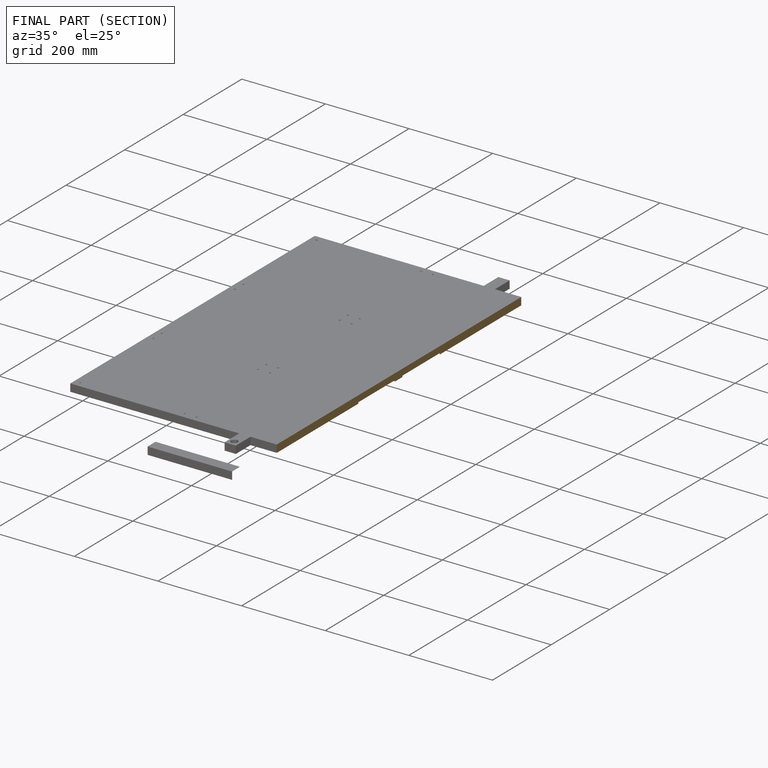
[diagram: finished part — half-section view (interior)]
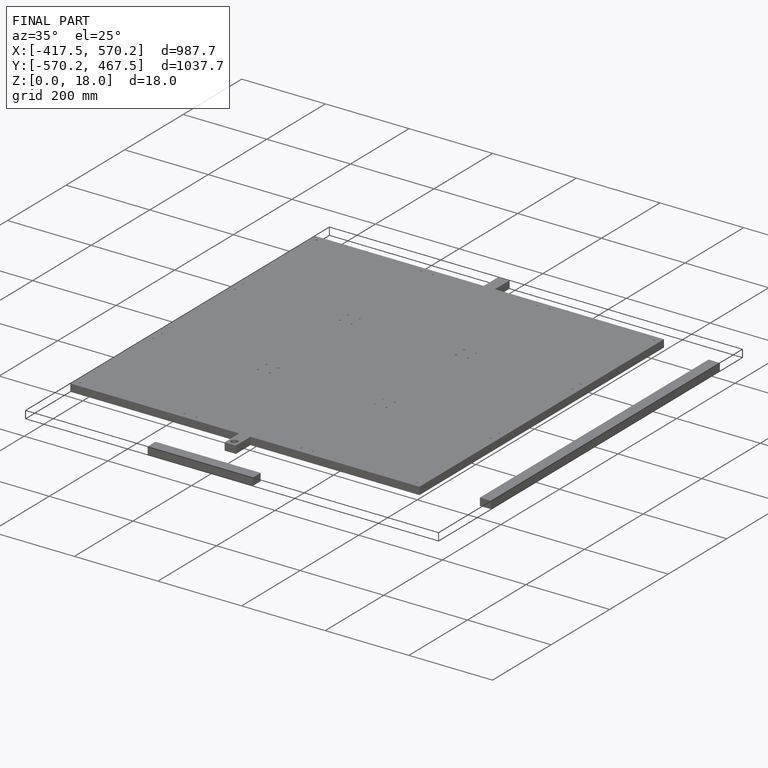
[diagram: finished part — iso view with bounding-box wireframe]
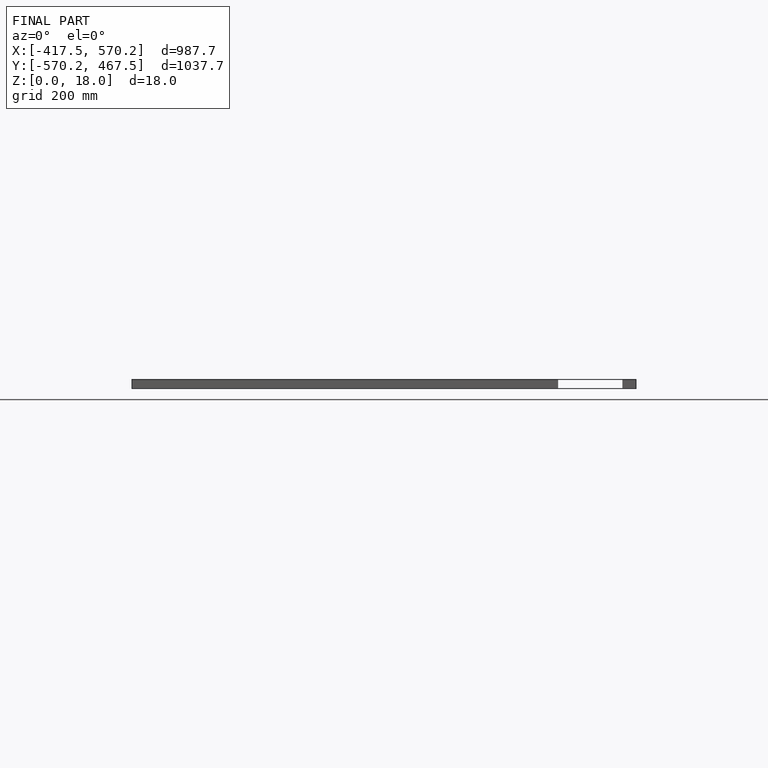
[diagram: finished part — front view with bounding-box wireframe]
